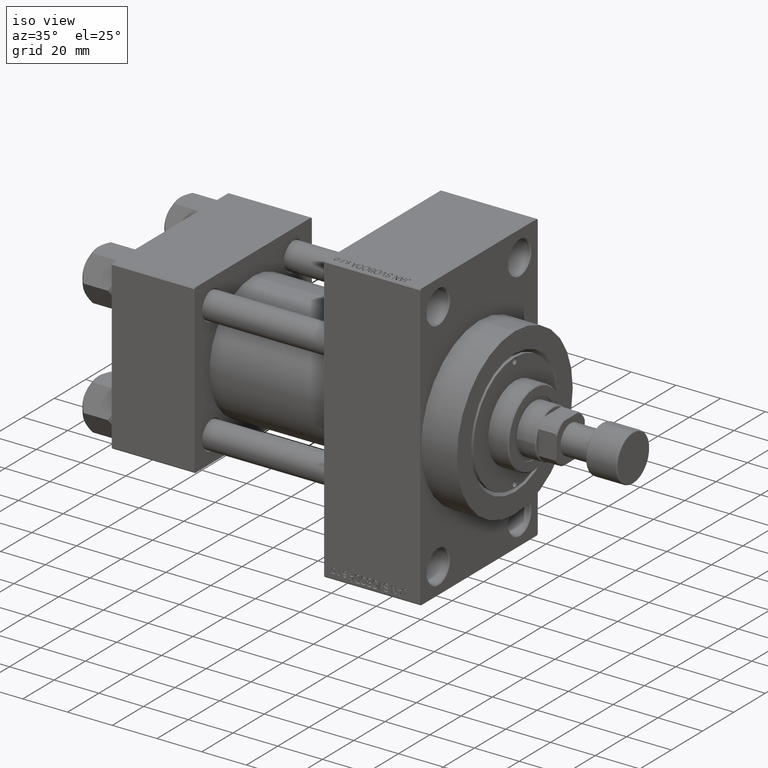
[diagram: clean part render]
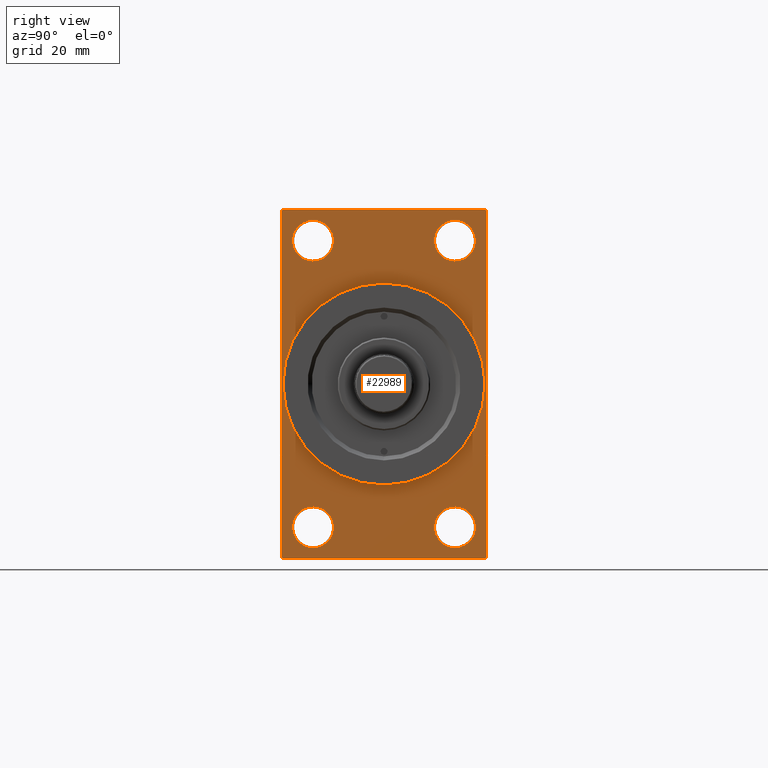
[diagram: tour spotlight — one face highlighted and labeled with its STEP entity id]
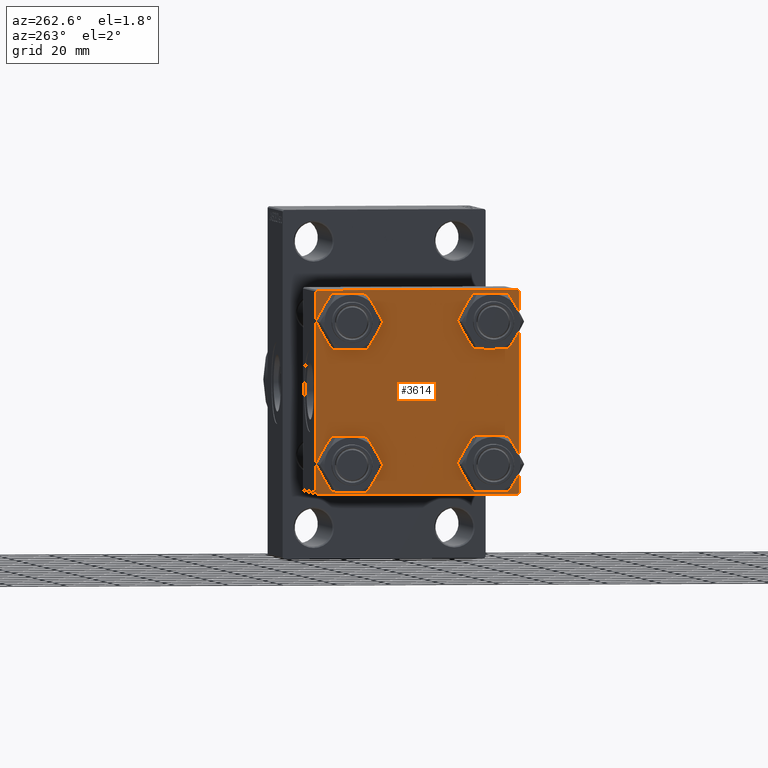
[diagram: tour spotlight — one face highlighted and labeled with its STEP entity id]
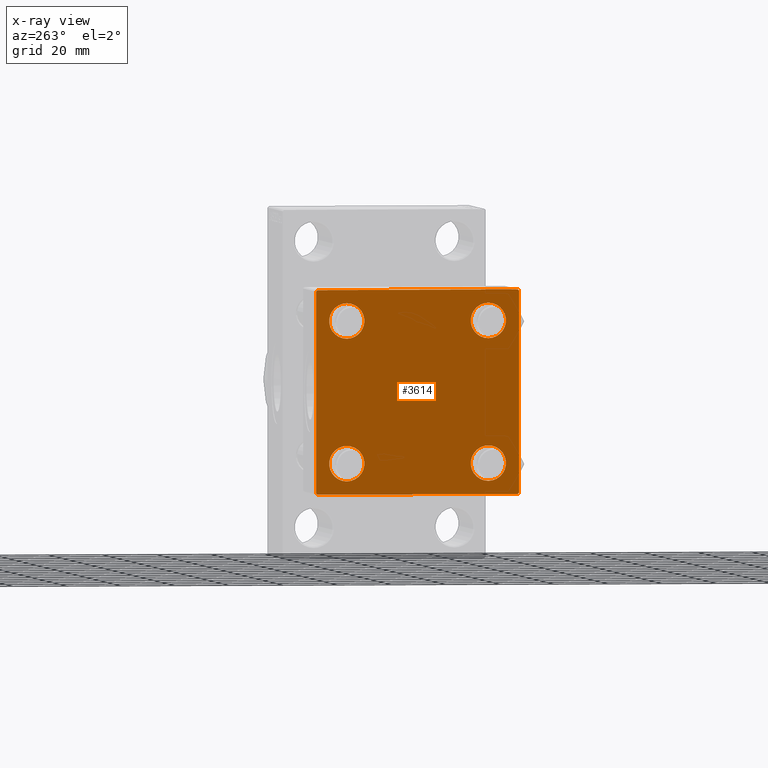
[diagram: x-ray of the same camera — body ghosted, this tour face saturated]
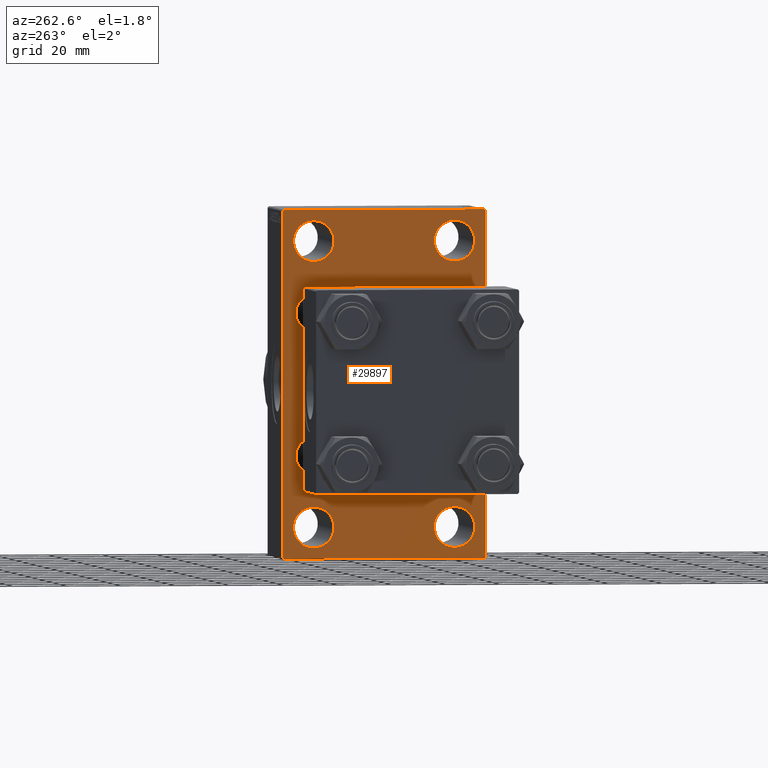
[diagram: tour spotlight — one face highlighted and labeled with its STEP entity id]
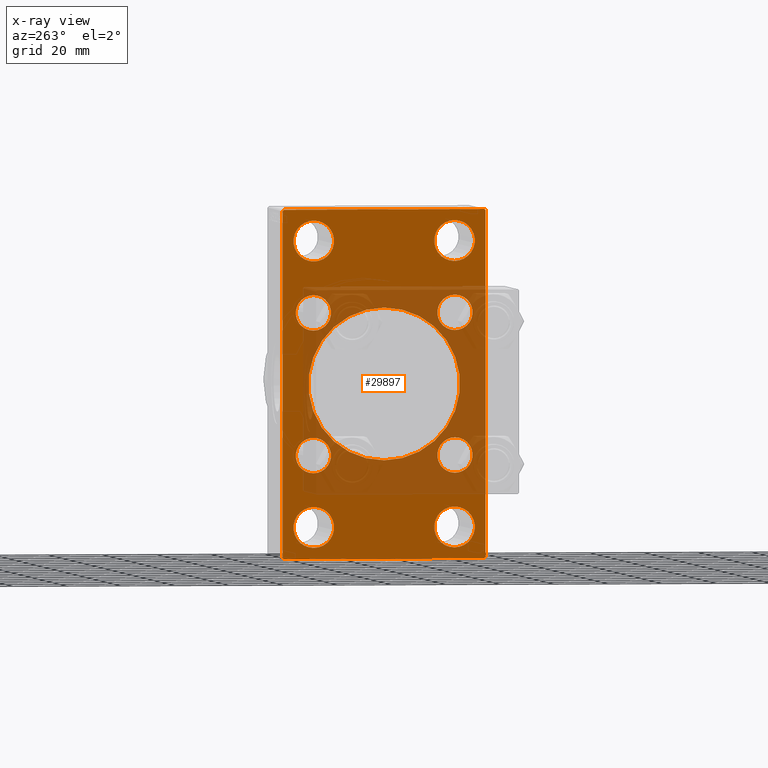
[diagram: x-ray of the same camera — body ghosted, this tour face saturated]
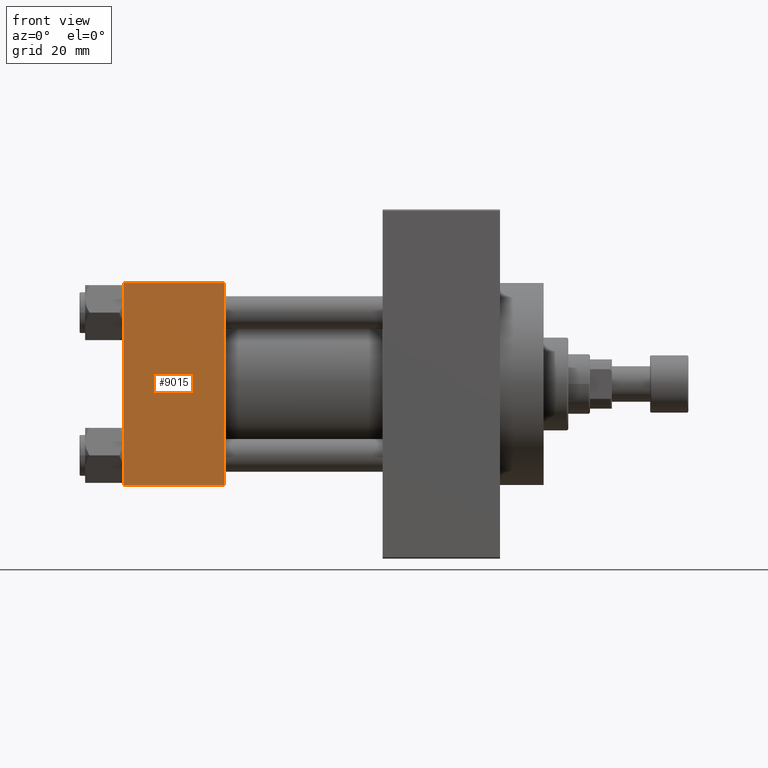
[diagram: tour spotlight — one face highlighted and labeled with its STEP entity id]
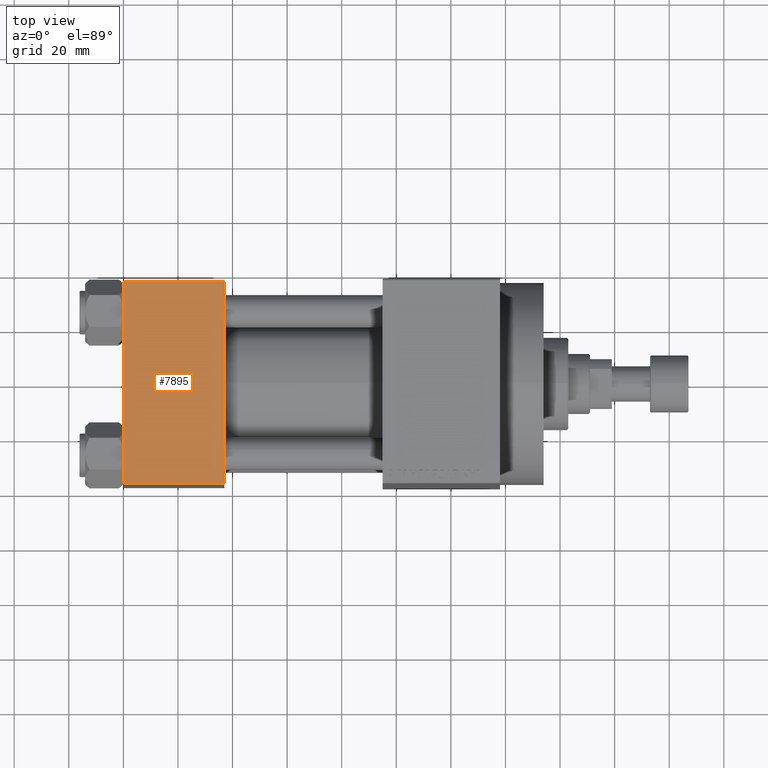
[diagram: tour spotlight — one face highlighted and labeled with its STEP entity id]
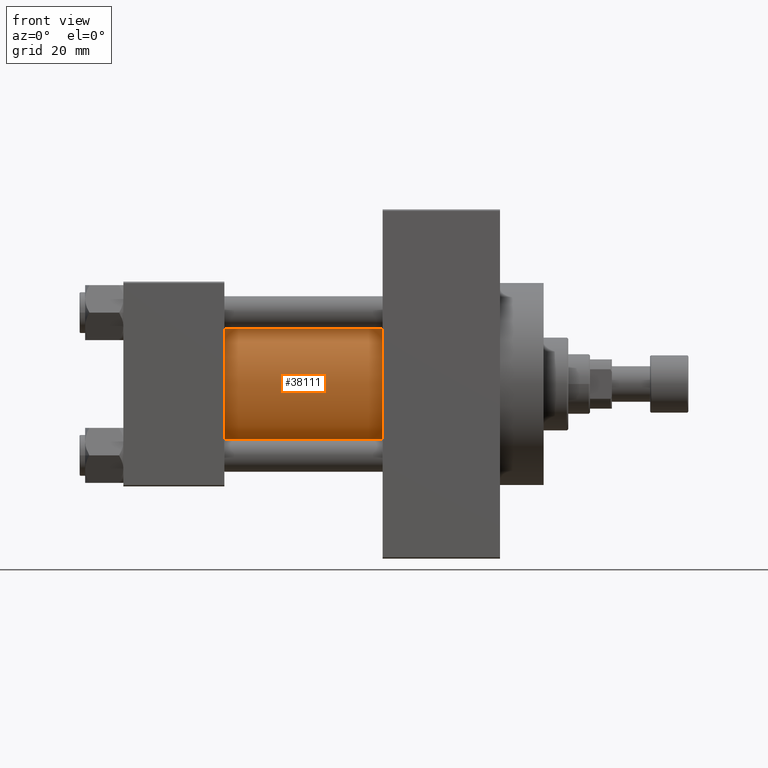
[diagram: tour spotlight — one face highlighted and labeled with its STEP entity id]
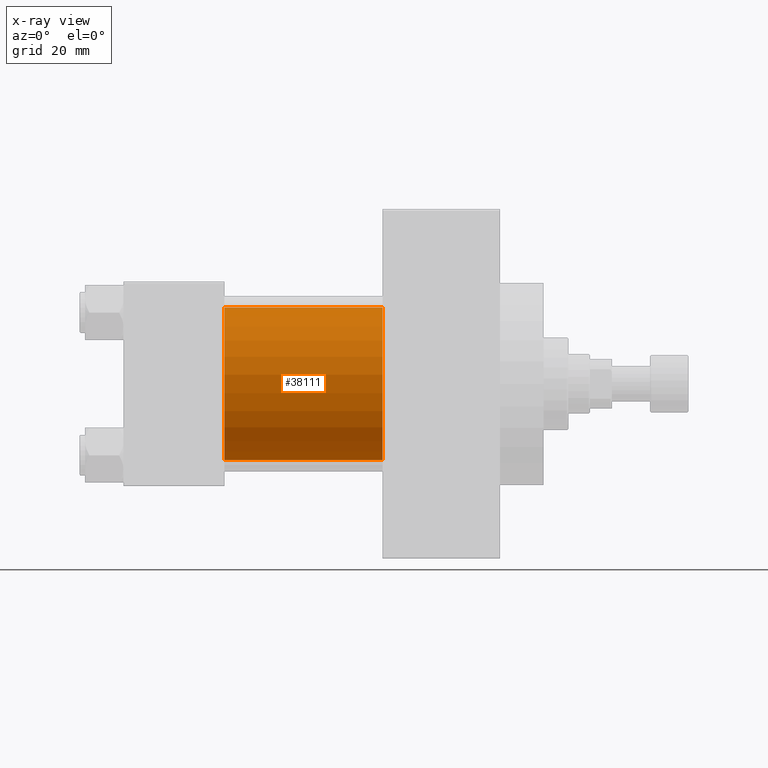
[diagram: x-ray of the same camera — body ghosted, this tour face saturated]
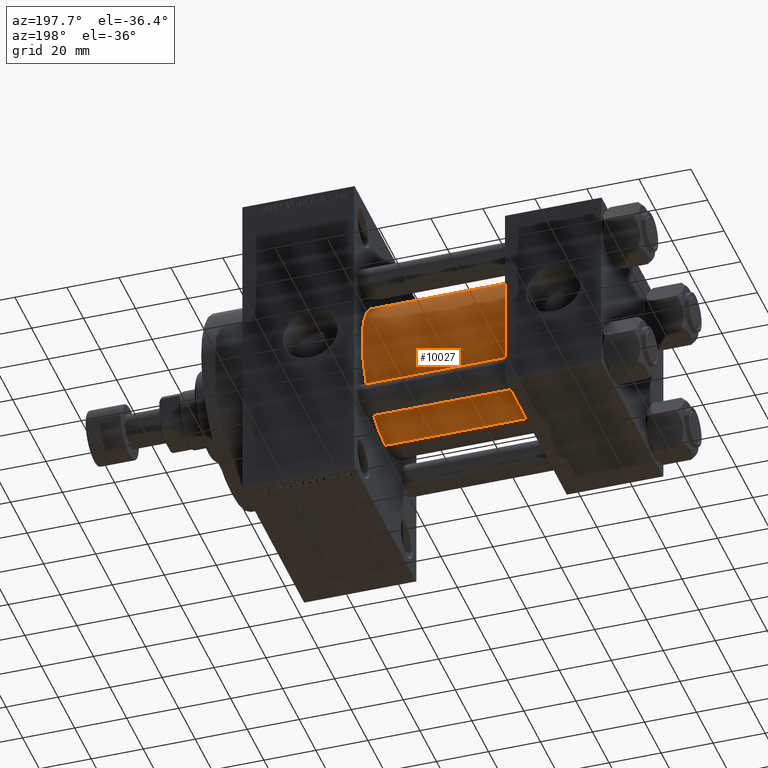
[diagram: tour spotlight — one face highlighted and labeled with its STEP entity id]
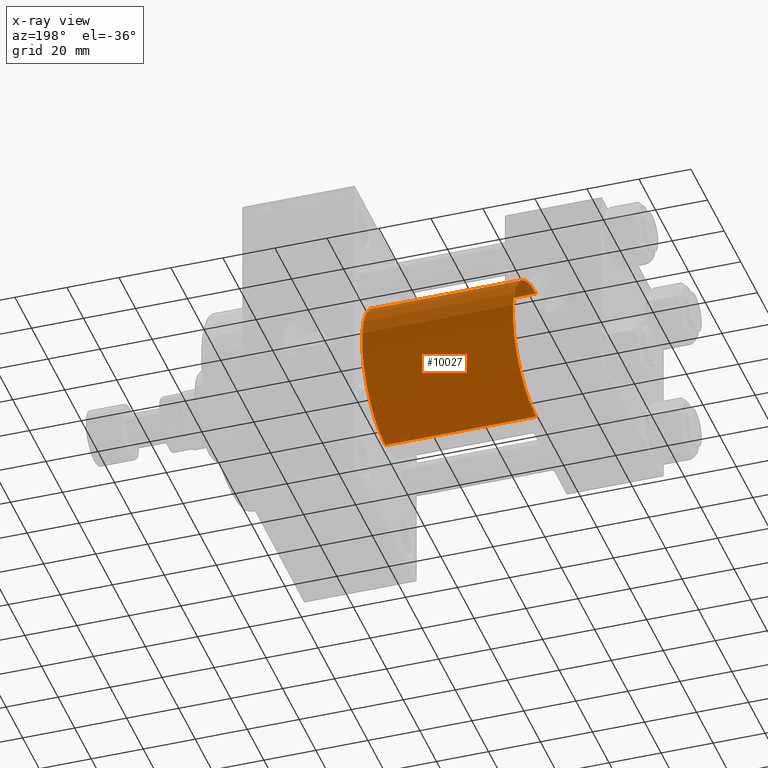
[diagram: x-ray of the same camera — body ghosted, this tour face saturated]
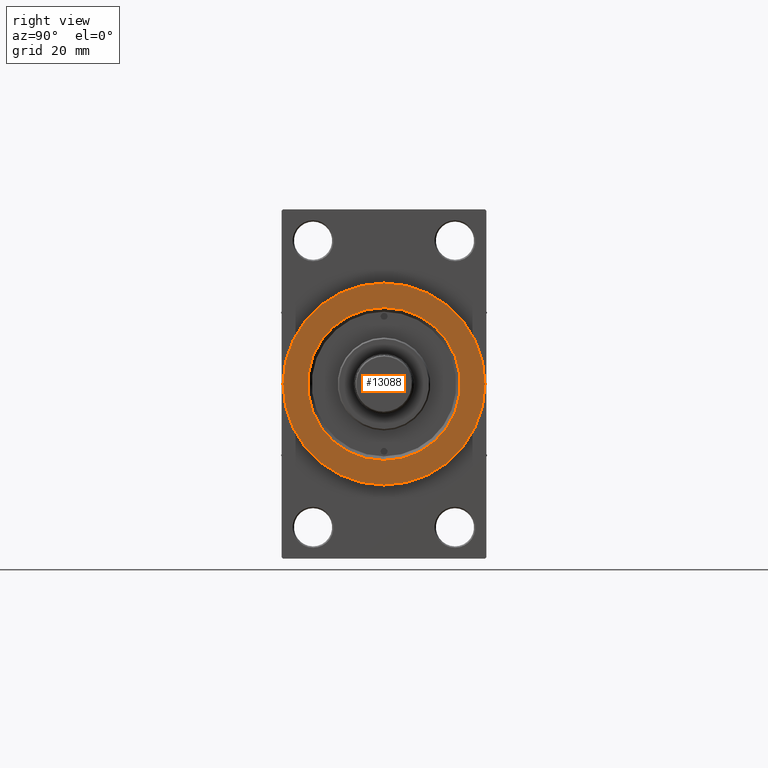
[diagram: tour spotlight — one face highlighted and labeled with its STEP entity id]
A machine part: a face-by-face anatomy tour. The part has 1123 B-rep faces; the first image is the clean iso view, then the 8 largest visible faces are spotlighted one at a time (largest first), each with its STEP entity span.

Face 1 — right view, entity #22989. In plain terms, the highlighted planar face has unit normal (-1, 0, 0).
Definition (entity closure, byte-faithful):
#140 = EDGE_CURVE ( 'NONE', #27331, #17004, #9441, .T. ) ;
#309 = CIRCLE ( 'NONE', #3435, 37.00000000000000000 ) ;
#503 = EDGE_CURVE ( 'NONE', #43094, #6210, #2519, .T. ) ;
#805 = DIRECTION ( 'NONE',  ( -0.000000000000000000, 0.000000000000000000, 1.000000000000000000 ) ) ;
#1234 = VERTEX_POINT ( 'NONE', #43765 ) ;
#1317 = EDGE_CURVE ( 'NONE', #18499, #11020, #21744, .T. ) ;
#1491 = CARTESIAN_POINT ( 'NONE',  ( 138.0000000000000000, 26.00000000000000000, 52.49999999999999289 ) ) ;
#1493 = DIRECTION ( 'NONE',  ( 0.000000000000000000, 0.000000000000000000, 1.000000000000000000 ) ) ;
#1699 = LINE ( 'NONE', #31903, #16755 ) ;
#1723 = DIRECTION ( 'NONE',  ( 0.000000000000000000, 0.000000000000000000, 1.000000000000000000 ) ) ;
#1734 = DIRECTION ( 'NONE',  ( -1.000000000000000000, 0.000000000000000000, -0.000000000000000000 ) ) ;
#2278 = DIRECTION ( 'NONE',  ( -0.000000000000000000, 0.7071067811865573427, 0.7071067811865378028 ) ) ;
#2519 = CIRCLE ( 'NONE', #4056, 7.500000000000007105 ) ;
#3144 = VERTEX_POINT ( 'NONE', #35645 ) ;
#3266 = AXIS2_PLACEMENT_3D ( 'NONE', #35093, #19622, #1493 ) ;
#3435 = AXIS2_PLACEMENT_3D ( 'NONE', #40004, #28637, #9795 ) ;
#3573 = CIRCLE ( 'NONE', #15941, 7.500000000000007105 ) ;
#4056 = AXIS2_PLACEMENT_3D ( 'NONE', #19320, #30698, #45671 ) ;
#4097 = ORIENTED_EDGE ( 'NONE', *, *, #46936, .T. ) ;
#4217 = CARTESIAN_POINT ( 'NONE',  ( 138.0000000000000000, -36.99999999999993605, -64.00000000000001421 ) ) ;
#4324 = CARTESIAN_POINT ( 'NONE',  ( 138.0000000000000000, 37.49999999999999289, -63.50000000000001421 ) ) ;
#5264 = CARTESIAN_POINT ( 'NONE',  ( 138.0000000000000000, 26.00000000000000000, -44.99999999999998579 ) ) ;
#5419 = DIRECTION ( 'NONE',  ( 0.000000000000000000, -5.421010862427522170E-17, -1.000000000000000000 ) ) ;
#5623 = ORIENTED_EDGE ( 'NONE', *, *, #13702, .T. ) ;
#5685 = DIRECTION ( 'NONE',  ( -1.000000000000000000, 0.000000000000000000, -0.000000000000000000 ) ) ;
#5703 = AXIS2_PLACEMENT_3D ( 'NONE', #1491, #42578, #1723 ) ;
#5715 = LINE ( 'NONE', #12469, #13497 ) ;
#5953 = DIRECTION ( 'NONE',  ( -0.000000000000000000, -0.7071067811865524577, -0.7071067811865426878 ) ) ;
#6210 = VERTEX_POINT ( 'NONE', #16038 ) ;
#6602 = CARTESIAN_POINT ( 'NONE',  ( 138.0000000000000000, 37.49999999999999289, -63.50000000000001421 ) ) ;
#7944 = VECTOR ( 'NONE', #23117, 1000.000000000000000 ) ;
#8047 = FACE_OUTER_BOUND ( 'NONE', #8683, .T. ) ;
#8563 = CARTESIAN_POINT ( 'NONE',  ( 138.0000000000000000, -25.99999999999999645, 60.00000000000000711 ) ) ;
#8683 = EDGE_LOOP ( 'NONE', ( #33060, #44427, #47604, #30174, #35468, #18855, #15357, #4097 ) ) ;
#9118 = CIRCLE ( 'NONE', #9865, 7.500000000000007105 ) ;
#9441 = CIRCLE ( 'NONE', #3266, 7.500000000000007105 ) ;
#9694 = DIRECTION ( 'NONE',  ( 0.000000000000000000, 0.000000000000000000, 1.000000000000000000 ) ) ;
#9756 = CARTESIAN_POINT ( 'NONE',  ( 138.0000000000000000, 36.99999999999997158, 63.99999999999998579 ) ) ;
#9795 = DIRECTION ( 'NONE',  ( 0.000000000000000000, 0.000000000000000000, -1.000000000000000000 ) ) ;
#9865 = AXIS2_PLACEMENT_3D ( 'NONE', #28427, #42713, #27726 ) ;
#10068 = VECTOR ( 'NONE', #30239, 1000.000000000000000 ) ;
#10214 = VERTEX_POINT ( 'NONE', #4324 ) ;
#10292 = VECTOR ( 'NONE', #5419, 1000.000000000000000 ) ;
#11020 = VERTEX_POINT ( 'NONE', #40294 ) ;
#11372 = LINE ( 'NONE', #18880, #10068 ) ;
#11782 = VECTOR ( 'NONE', #36511, 1000.000000000000000 ) ;
#11895 = DIRECTION ( 'NONE',  ( -1.000000000000000000, 0.000000000000000000, -0.000000000000000000 ) ) ;
#12469 = CARTESIAN_POINT ( 'NONE',  ( 138.0000000000000000, -37.49999999999999289, 63.49999999999994316 ) ) ;
#12656 = CARTESIAN_POINT ( 'NONE',  ( 138.0000000000000000, 37.50000000000000000, 63.99999999999998579 ) ) ;
#13346 = CIRCLE ( 'NONE', #45774, 7.500000000000007105 ) ;
#13497 = VECTOR ( 'NONE', #5953, 1000.000000000000000 ) ;
#13520 = DIRECTION ( 'NONE',  ( 0.000000000000000000, -1.000000000000000000, -1.850371707708594563E-16 ) ) ;
#13635 = EDGE_LOOP ( 'NONE', ( #5623, #14628 ) ) ;
#13702 = EDGE_CURVE ( 'NONE', #38837, #33603, #3573, .T. ) ;
#14038 = ORIENTED_EDGE ( 'NONE', *, *, #29446, .T. ) ;
#14493 = ORIENTED_EDGE ( 'NONE', *, *, #503, .T. ) ;
#14628 = ORIENTED_EDGE ( 'NONE', *, *, #36048, .T. ) ;
#14684 = DIRECTION ( 'NONE',  ( 1.000000000000000000, 0.000000000000000000, 0.000000000000000000 ) ) ;
#15357 = ORIENTED_EDGE ( 'NONE', *, *, #36499, .T. ) ;
#15629 = AXIS2_PLACEMENT_3D ( 'NONE', #45510, #11895, #37546 ) ;
#15678 = ORIENTED_EDGE ( 'NONE', *, *, #43952, .F. ) ;
#15918 = ORIENTED_EDGE ( 'NONE', *, *, #20721, .T. ) ;
#15941 = AXIS2_PLACEMENT_3D ( 'NONE', #34710, #5685, #16561 ) ;
#16038 = CARTESIAN_POINT ( 'NONE',  ( 138.0000000000000000, 26.00000000000000000, -60.00000000000000000 ) ) ;
#16237 = EDGE_CURVE ( 'NONE', #3144, #41409, #19795, .T. ) ;
#16561 = DIRECTION ( 'NONE',  ( 0.000000000000000000, 0.000000000000000000, 1.000000000000000000 ) ) ;
#16755 = VECTOR ( 'NONE', #13520, 1000.000000000000000 ) ;
#17004 = VERTEX_POINT ( 'NONE', #30209 ) ;
#18287 = CARTESIAN_POINT ( 'NONE',  ( 138.0000000000000000, 4.531193156845206793E-15, -37.00000000000000000 ) ) ;
#18499 = VERTEX_POINT ( 'NONE', #44858 ) ;
#18855 = ORIENTED_EDGE ( 'NONE', *, *, #1317, .T. ) ;
#18880 = CARTESIAN_POINT ( 'NONE',  ( 138.0000000000000000, -37.49999999999999289, 63.99999999999997158 ) ) ;
#18957 = EDGE_CURVE ( 'NONE', #27721, #41409, #1699, .T. ) ;
#19320 = CARTESIAN_POINT ( 'NONE',  ( 138.0000000000000000, 26.00000000000000000, -52.49999999999999289 ) ) ;
#19622 = DIRECTION ( 'NONE',  ( -1.000000000000000000, 0.000000000000000000, -0.000000000000000000 ) ) ;
#19795 = LINE ( 'NONE', #31406, #32220 ) ;
#20721 = EDGE_CURVE ( 'NONE', #26097, #1234, #9118, .T. ) ;
#20871 = VERTEX_POINT ( 'NONE', #41947 ) ;
#21744 = LINE ( 'NONE', #9756, #11782 ) ;
#21892 = CIRCLE ( 'NONE', #5703, 7.500000000000007105 ) ;
#21947 = CARTESIAN_POINT ( 'NONE',  ( 138.0000000000000000, 0.000000000000000000, 0.000000000000000000 ) ) ;
#22022 = VERTEX_POINT ( 'NONE', #39745 ) ;
#22069 = CARTESIAN_POINT ( 'NONE',  ( 138.0000000000000000, 26.00000000000000000, 60.00000000000000000 ) ) ;
#22367 = CARTESIAN_POINT ( 'NONE',  ( 138.0000000000000000, -37.49999999999999289, 63.49999999999994316 ) ) ;
#22802 = PLANE ( 'NONE',  #40825 ) ;
#22989 = ADVANCED_FACE ( 'NONE', ( #33691, #25705, #30050, #41185, #30303, #8047 ), #22802, .F. ) ;
#23050 = DIRECTION ( 'NONE',  ( -1.000000000000000000, 0.000000000000000000, -0.000000000000000000 ) ) ;
#23117 = DIRECTION ( 'NONE',  ( 0.000000000000000000, -1.000000000000000000, -1.850371707708594563E-16 ) ) ;
#23952 = CIRCLE ( 'NONE', #40927, 7.500000000000007105 ) ;
#24387 = EDGE_LOOP ( 'NONE', ( #14038, #14493 ) ) ;
#25705 = FACE_BOUND ( 'NONE', #41819, .T. ) ;
#26097 = VERTEX_POINT ( 'NONE', #22069 ) ;
#26310 = DIRECTION ( 'NONE',  ( -1.000000000000000000, 0.000000000000000000, -0.000000000000000000 ) ) ;
#26504 = LINE ( 'NONE', #37880, #7944 ) ;
#27331 = VERTEX_POINT ( 'NONE', #41380 ) ;
#27345 = EDGE_CURVE ( 'NONE', #44420, #3144, #11372, .T. ) ;
#27721 = VERTEX_POINT ( 'NONE', #31523 ) ;
#27726 = DIRECTION ( 'NONE',  ( 0.000000000000000000, 0.000000000000000000, 1.000000000000000000 ) ) ;
#28427 = CARTESIAN_POINT ( 'NONE',  ( 138.0000000000000000, 26.00000000000000000, 52.49999999999999289 ) ) ;
#28637 = DIRECTION ( 'NONE',  ( 1.000000000000000000, 0.000000000000000000, 0.000000000000000000 ) ) ;
#29437 = DIRECTION ( 'NONE',  ( 0.000000000000000000, 0.000000000000000000, -1.000000000000000000 ) ) ;
#29446 = EDGE_CURVE ( 'NONE', #6210, #43094, #23952, .T. ) ;
#29573 = CIRCLE ( 'NONE', #46613, 37.00000000000000000 ) ;
#30050 = FACE_BOUND ( 'NONE', #24387, .T. ) ;
#30174 = ORIENTED_EDGE ( 'NONE', *, *, #34536, .T. ) ;
#30209 = CARTESIAN_POINT ( 'NONE',  ( 138.0000000000000000, -25.99999999999999645, -60.00000000000000000 ) ) ;
#30239 = DIRECTION ( 'NONE',  ( 0.000000000000000000, 0.000000000000000000, -1.000000000000000000 ) ) ;
#30303 = FACE_BOUND ( 'NONE', #36154, .T. ) ;
#30698 = DIRECTION ( 'NONE',  ( -1.000000000000000000, 0.000000000000000000, -0.000000000000000000 ) ) ;
#30918 = DIRECTION ( 'NONE',  ( 0.000000000000000000, 0.000000000000000000, 1.000000000000000000 ) ) ;
#31406 = CARTESIAN_POINT ( 'NONE',  ( 138.0000000000000000, -36.99999999999993605, -64.00000000000001421 ) ) ;
#31523 = CARTESIAN_POINT ( 'NONE',  ( 138.0000000000000000, 36.99999999999999289, -64.00000000000000000 ) ) ;
#31531 = ORIENTED_EDGE ( 'NONE', *, *, #34732, .T. ) ;
#31903 = CARTESIAN_POINT ( 'NONE',  ( 138.0000000000000000, 37.49999999999999289, -64.00000000000000000 ) ) ;
#32220 = VECTOR ( 'NONE', #38178, 999.9999999999998863 ) ;
#33060 = ORIENTED_EDGE ( 'NONE', *, *, #27345, .T. ) ;
#33603 = VERTEX_POINT ( 'NONE', #8563 ) ;
#33691 = FACE_BOUND ( 'NONE', #13635, .T. ) ;
#33939 = CARTESIAN_POINT ( 'NONE',  ( 138.0000000000000000, 0.000000000000000000, 0.000000000000000000 ) ) ;
#34536 = EDGE_CURVE ( 'NONE', #27721, #10214, #46750, .T. ) ;
#34710 = CARTESIAN_POINT ( 'NONE',  ( 138.0000000000000000, -25.99999999999999645, 52.50000000000000000 ) ) ;
#34732 = EDGE_CURVE ( 'NONE', #17004, #27331, #43402, .T. ) ;
#34836 = CARTESIAN_POINT ( 'NONE',  ( 138.0000000000000000, -25.99999999999999645, 44.99999999999999289 ) ) ;
#34935 = VECTOR ( 'NONE', #2278, 1000.000000000000000 ) ;
#35093 = CARTESIAN_POINT ( 'NONE',  ( 138.0000000000000000, -25.99999999999999645, -52.49999999999999289 ) ) ;
#35468 = ORIENTED_EDGE ( 'NONE', *, *, #41547, .F. ) ;
#35645 = CARTESIAN_POINT ( 'NONE',  ( 138.0000000000000000, -37.49999999999999289, -63.49999999999997158 ) ) ;
#36048 = EDGE_CURVE ( 'NONE', #33603, #38837, #13346, .T. ) ;
#36154 = EDGE_LOOP ( 'NONE', ( #43938, #15678 ) ) ;
#36499 = EDGE_CURVE ( 'NONE', #11020, #22022, #26504, .T. ) ;
#36511 = DIRECTION ( 'NONE',  ( 0.000000000000000000, -0.7071067811865672237, 0.7071067811865279218 ) ) ;
#37546 = DIRECTION ( 'NONE',  ( 0.000000000000000000, 0.000000000000000000, 1.000000000000000000 ) ) ;
#37880 = CARTESIAN_POINT ( 'NONE',  ( 138.0000000000000000, 37.50000000000000000, 63.99999999999998579 ) ) ;
#37999 = EDGE_CURVE ( 'NONE', #1234, #26097, #21892, .T. ) ;
#38178 = DIRECTION ( 'NONE',  ( 0.000000000000000000, 0.7071067811865574537, -0.7071067811865376918 ) ) ;
#38254 = ORIENTED_EDGE ( 'NONE', *, *, #140, .T. ) ;
#38837 = VERTEX_POINT ( 'NONE', #34836 ) ;
#38926 = ORIENTED_EDGE ( 'NONE', *, *, #37999, .T. ) ;
#39745 = CARTESIAN_POINT ( 'NONE',  ( 138.0000000000000000, -36.99999999999995737, 63.99999999999997158 ) ) ;
#40004 = CARTESIAN_POINT ( 'NONE',  ( 138.0000000000000000, 0.000000000000000000, 0.000000000000000000 ) ) ;
#40294 = CARTESIAN_POINT ( 'NONE',  ( 138.0000000000000000, 36.99999999999997158, 63.99999999999998579 ) ) ;
#40825 = AXIS2_PLACEMENT_3D ( 'NONE', #33939, #23050, #805 ) ;
#40927 = AXIS2_PLACEMENT_3D ( 'NONE', #46452, #1734, #9694 ) ;
#41062 = CARTESIAN_POINT ( 'NONE',  ( 138.0000000000000000, -25.99999999999999645, 52.50000000000000000 ) ) ;
#41185 = FACE_BOUND ( 'NONE', #45140, .T. ) ;
#41380 = CARTESIAN_POINT ( 'NONE',  ( 138.0000000000000000, -25.99999999999999645, -44.99999999999998579 ) ) ;
#41409 = VERTEX_POINT ( 'NONE', #4217 ) ;
#41547 = EDGE_CURVE ( 'NONE', #18499, #10214, #45797, .T. ) ;
#41819 = EDGE_LOOP ( 'NONE', ( #31531, #38254 ) ) ;
#41947 = CARTESIAN_POINT ( 'NONE',  ( 138.0000000000000000, 0.000000000000000000, 37.00000000000000000 ) ) ;
#42578 = DIRECTION ( 'NONE',  ( -1.000000000000000000, 0.000000000000000000, -0.000000000000000000 ) ) ;
#42713 = DIRECTION ( 'NONE',  ( -1.000000000000000000, 0.000000000000000000, -0.000000000000000000 ) ) ;
#43094 = VERTEX_POINT ( 'NONE', #5264 ) ;
#43402 = CIRCLE ( 'NONE', #15629, 7.500000000000007105 ) ;
#43765 = CARTESIAN_POINT ( 'NONE',  ( 138.0000000000000000, 26.00000000000000000, 44.99999999999998579 ) ) ;
#43938 = ORIENTED_EDGE ( 'NONE', *, *, #46066, .F. ) ;
#43952 = EDGE_CURVE ( 'NONE', #45048, #20871, #29573, .T. ) ;
#44420 = VERTEX_POINT ( 'NONE', #22367 ) ;
#44427 = ORIENTED_EDGE ( 'NONE', *, *, #16237, .T. ) ;
#44858 = CARTESIAN_POINT ( 'NONE',  ( 138.0000000000000000, 37.50000000000000000, 63.49999999999998579 ) ) ;
#45048 = VERTEX_POINT ( 'NONE', #18287 ) ;
#45140 = EDGE_LOOP ( 'NONE', ( #38926, #15918 ) ) ;
#45510 = CARTESIAN_POINT ( 'NONE',  ( 138.0000000000000000, -25.99999999999999645, -52.49999999999999289 ) ) ;
#45671 = DIRECTION ( 'NONE',  ( 0.000000000000000000, 0.000000000000000000, 1.000000000000000000 ) ) ;
#45774 = AXIS2_PLACEMENT_3D ( 'NONE', #41062, #26310, #30918 ) ;
#45797 = LINE ( 'NONE', #12656, #10292 ) ;
#46066 = EDGE_CURVE ( 'NONE', #20871, #45048, #309, .T. ) ;
#46452 = CARTESIAN_POINT ( 'NONE',  ( 138.0000000000000000, 26.00000000000000000, -52.49999999999999289 ) ) ;
#46613 = AXIS2_PLACEMENT_3D ( 'NONE', #21947, #14684, #29437 ) ;
#46750 = LINE ( 'NONE', #6602, #34935 ) ;
#46936 = EDGE_CURVE ( 'NONE', #22022, #44420, #5715, .T. ) ;
#47604 = ORIENTED_EDGE ( 'NONE', *, *, #18957, .F. ) ;

Face 2 — auxiliary view, entity #3614. An x-ray twin of the same camera follows (body ghosted, this face saturated) — the face is partly hidden behind the body. In plain terms, the highlighted planar face has unit normal (-1, 0, 0).
Definition (entity closure, byte-faithful):
#118 = VECTOR ( 'NONE', #46279, 1000.000000000000114 ) ;
#701 = CARTESIAN_POINT ( 'NONE',  ( 0.000000000000000000, 37.49999999999999289, 37.50000000000000000 ) ) ;
#830 = DIRECTION ( 'NONE',  ( 1.000000000000000000, -0.000000000000000000, 0.000000000000000000 ) ) ;
#1155 = VERTEX_POINT ( 'NONE', #5192 ) ;
#1244 = VERTEX_POINT ( 'NONE', #23794 ) ;
#1256 = LINE ( 'NONE', #24194, #47377 ) ;
#1795 = CARTESIAN_POINT ( 'NONE',  ( 0.000000000000000000, 37.24999999999998579, -37.24999999999998579 ) ) ;
#2306 = CARTESIAN_POINT ( 'NONE',  ( 0.000000000000000000, 26.14999999999999858, -32.65000000000001990 ) ) ;
#2480 = AXIS2_PLACEMENT_3D ( 'NONE', #7714, #41359, #23211 ) ;
#2867 = ORIENTED_EDGE ( 'NONE', *, *, #32158, .T. ) ;
#3314 = DIRECTION ( 'NONE',  ( 1.000000000000000000, -0.000000000000000000, 0.000000000000000000 ) ) ;
#3614 = ADVANCED_FACE ( 'NONE', ( #3875, #45460, #15717, #40860, #34349 ), #8459, .T. ) ;
#3875 = FACE_BOUND ( 'NONE', #5547, .T. ) ;
#4290 = EDGE_CURVE ( 'NONE', #16631, #7595, #19522, .T. ) ;
#4759 = ORIENTED_EDGE ( 'NONE', *, *, #42813, .T. ) ;
#4866 = AXIS2_PLACEMENT_3D ( 'NONE', #19894, #24232, #24698 ) ;
#4926 = VECTOR ( 'NONE', #46650, 1000.000000000000000 ) ;
#5192 = CARTESIAN_POINT ( 'NONE',  ( 0.000000000000000000, -26.14999999999999147, 19.64999999999999147 ) ) ;
#5547 = EDGE_LOOP ( 'NONE', ( #4759, #26183 ) ) ;
#5690 = CARTESIAN_POINT ( 'NONE',  ( 0.000000000000000000, 36.99999999999997868, -37.50000000000000000 ) ) ;
#5814 = EDGE_CURVE ( 'NONE', #18606, #37407, #33992, .T. ) ;
#6232 = CARTESIAN_POINT ( 'NONE',  ( 0.000000000000000000, 37.49999999999999289, -37.50000000000000000 ) ) ;
#6791 = CARTESIAN_POINT ( 'NONE',  ( 0.000000000000000000, 26.14999999999999858, 26.15000000000000213 ) ) ;
#7017 = AXIS2_PLACEMENT_3D ( 'NONE', #6791, #42609, #43088 ) ;
#7084 = EDGE_LOOP ( 'NONE', ( #21825, #44312 ) ) ;
#7190 = EDGE_CURVE ( 'NONE', #43340, #41656, #36573, .T. ) ;
#7508 = CARTESIAN_POINT ( 'NONE',  ( 0.000000000000000000, 26.14999999999999858, 26.15000000000000213 ) ) ;
#7595 = VERTEX_POINT ( 'NONE', #30181 ) ;
#7714 = CARTESIAN_POINT ( 'NONE',  ( 0.000000000000000000, 0.000000000000000000, 0.000000000000000000 ) ) ;
#7797 = VERTEX_POINT ( 'NONE', #17813 ) ;
#7938 = LINE ( 'NONE', #701, #17968 ) ;
#8076 = ORIENTED_EDGE ( 'NONE', *, *, #43804, .T. ) ;
#8300 = VERTEX_POINT ( 'NONE', #18946 ) ;
#8459 = PLANE ( 'NONE',  #2480 ) ;
#8588 = DIRECTION ( 'NONE',  ( 0.000000000000000000, -1.000000000000000000, -9.251858538542971581E-17 ) ) ;
#9648 = CARTESIAN_POINT ( 'NONE',  ( 0.000000000000000000, -26.14999999999999147, 26.15000000000000924 ) ) ;
#9714 = CARTESIAN_POINT ( 'NONE',  ( 0.000000000000000000, 26.14999999999999858, 32.65000000000002700 ) ) ;
#10753 = LINE ( 'NONE', #30828, #37379 ) ;
#10794 = DIRECTION ( 'NONE',  ( 0.000000000000000000, 0.000000000000000000, 1.000000000000000000 ) ) ;
#11039 = EDGE_CURVE ( 'NONE', #14545, #23143, #36704, .T. ) ;
#11165 = CARTESIAN_POINT ( 'NONE',  ( 0.000000000000000000, -26.14999999999999147, -19.64999999999999503 ) ) ;
#11976 = CARTESIAN_POINT ( 'NONE',  ( 0.000000000000000000, 37.49999999999999289, 37.50000000000000000 ) ) ;
#12171 = EDGE_CURVE ( 'NONE', #1244, #37407, #19224, .T. ) ;
#13126 = CARTESIAN_POINT ( 'NONE',  ( 0.000000000000000000, -26.14999999999999147, 26.15000000000000924 ) ) ;
#14442 = ORIENTED_EDGE ( 'NONE', *, *, #33715, .T. ) ;
#14545 = VERTEX_POINT ( 'NONE', #2306 ) ;
#14880 = CARTESIAN_POINT ( 'NONE',  ( 0.000000000000000000, -26.14999999999999147, -26.15000000000000924 ) ) ;
#14965 = EDGE_LOOP ( 'NONE', ( #34083, #40133 ) ) ;
#15440 = DIRECTION ( 'NONE',  ( 0.000000000000000000, 0.000000000000000000, -1.000000000000000000 ) ) ;
#15717 = FACE_BOUND ( 'NONE', #14965, .T. ) ;
#15828 = DIRECTION ( 'NONE',  ( 0.000000000000000000, 0.000000000000000000, 1.000000000000000000 ) ) ;
#16264 = CIRCLE ( 'NONE', #32470, 6.500000000000023093 ) ;
#16631 = VERTEX_POINT ( 'NONE', #11165 ) ;
#16901 = ORIENTED_EDGE ( 'NONE', *, *, #5814, .F. ) ;
#17813 = CARTESIAN_POINT ( 'NONE',  ( 0.000000000000000000, -37.00000000000002132, -37.50000000000000711 ) ) ;
#17968 = VECTOR ( 'NONE', #15440, 1000.000000000000000 ) ;
#18183 = DIRECTION ( 'NONE',  ( 0.000000000000000000, 0.000000000000000000, 1.000000000000000000 ) ) ;
#18606 = VERTEX_POINT ( 'NONE', #26972 ) ;
#18946 = CARTESIAN_POINT ( 'NONE',  ( 0.000000000000000000, 37.49999999999999289, -36.99999999999998579 ) ) ;
#19224 = LINE ( 'NONE', #34703, #29790 ) ;
#19522 = CIRCLE ( 'NONE', #4866, 6.500000000000015987 ) ;
#19894 = CARTESIAN_POINT ( 'NONE',  ( 0.000000000000000000, -26.14999999999999147, -26.15000000000000924 ) ) ;
#20456 = CARTESIAN_POINT ( 'NONE',  ( 0.000000000000000000, -37.50000000000000000, -37.00000000000003553 ) ) ;
#21825 = ORIENTED_EDGE ( 'NONE', *, *, #4290, .T. ) ;
#21854 = VECTOR ( 'NONE', #8588, 1000.000000000000000 ) ;
#21997 = VERTEX_POINT ( 'NONE', #28151 ) ;
#22263 = DIRECTION ( 'NONE',  ( 1.000000000000000000, -0.000000000000000000, 0.000000000000000000 ) ) ;
#22737 = VERTEX_POINT ( 'NONE', #5690 ) ;
#23143 = VERTEX_POINT ( 'NONE', #34182 ) ;
#23211 = DIRECTION ( 'NONE',  ( -0.000000000000000000, 0.000000000000000000, 1.000000000000000000 ) ) ;
#23497 = AXIS2_PLACEMENT_3D ( 'NONE', #14880, #29640, #40770 ) ;
#23794 = CARTESIAN_POINT ( 'NONE',  ( 0.000000000000000000, -37.50000000000000711, 36.99999999999999289 ) ) ;
#24165 = LINE ( 'NONE', #42788, #4926 ) ;
#24194 = CARTESIAN_POINT ( 'NONE',  ( 0.000000000000000000, 37.24999999999999289, 37.24999999999999289 ) ) ;
#24232 = DIRECTION ( 'NONE',  ( 1.000000000000000000, -0.000000000000000000, 0.000000000000000000 ) ) ;
#24393 = EDGE_CURVE ( 'NONE', #22737, #7797, #43444, .T. ) ;
#24400 = DIRECTION ( 'NONE',  ( 1.000000000000000000, -0.000000000000000000, 0.000000000000000000 ) ) ;
#24511 = LINE ( 'NONE', #1795, #118 ) ;
#24531 = DIRECTION ( 'NONE',  ( -0.000000000000000000, 0.7071067811865474617, 0.7071067811865474617 ) ) ;
#24698 = DIRECTION ( 'NONE',  ( 0.000000000000000000, 0.000000000000000000, 1.000000000000000000 ) ) ;
#25016 = ORIENTED_EDGE ( 'NONE', *, *, #38063, .T. ) ;
#26183 = ORIENTED_EDGE ( 'NONE', *, *, #27770, .T. ) ;
#26718 = DIRECTION ( 'NONE',  ( 0.000000000000000000, 9.251858538542971581E-17, -1.000000000000000000 ) ) ;
#26945 = CARTESIAN_POINT ( 'NONE',  ( 0.000000000000000000, 26.14999999999999858, -26.15000000000000213 ) ) ;
#26972 = CARTESIAN_POINT ( 'NONE',  ( 0.000000000000000000, 36.99999999999999289, 37.50000000000000000 ) ) ;
#27770 = EDGE_CURVE ( 'NONE', #1155, #42639, #16264, .T. ) ;
#27891 = CIRCLE ( 'NONE', #7017, 6.500000000000023093 ) ;
#28151 = CARTESIAN_POINT ( 'NONE',  ( 0.000000000000000000, 37.49999999999999289, 37.00000000000000000 ) ) ;
#28506 = VECTOR ( 'NONE', #31634, 1000.000000000000000 ) ;
#28696 = CIRCLE ( 'NONE', #41840, 6.500000000000015987 ) ;
#28922 = EDGE_LOOP ( 'NONE', ( #33469, #14442, #29651, #8076, #35898, #35704, #16901, #25016 ) ) ;
#29407 = CARTESIAN_POINT ( 'NONE',  ( 0.000000000000000000, 26.14999999999999858, -26.15000000000000213 ) ) ;
#29640 = DIRECTION ( 'NONE',  ( 1.000000000000000000, -0.000000000000000000, 0.000000000000000000 ) ) ;
#29651 = ORIENTED_EDGE ( 'NONE', *, *, #24393, .T. ) ;
#29705 = CARTESIAN_POINT ( 'NONE',  ( 0.000000000000000000, -37.00000000000000711, 37.49999999999999289 ) ) ;
#29790 = VECTOR ( 'NONE', #24531, 1000.000000000000114 ) ;
#30181 = CARTESIAN_POINT ( 'NONE',  ( 0.000000000000000000, -26.14999999999999147, -32.65000000000002700 ) ) ;
#30828 = CARTESIAN_POINT ( 'NONE',  ( 0.000000000000000000, -37.50000000000000711, 37.49999999999999289 ) ) ;
#31310 = AXIS2_PLACEMENT_3D ( 'NONE', #29407, #3314, #10794 ) ;
#31634 = DIRECTION ( 'NONE',  ( 0.000000000000000000, -1.000000000000000000, -9.251858538542972814E-17 ) ) ;
#32108 = AXIS2_PLACEMENT_3D ( 'NONE', #9648, #24400, #39158 ) ;
#32158 = EDGE_CURVE ( 'NONE', #41656, #43340, #27891, .T. ) ;
#32470 = AXIS2_PLACEMENT_3D ( 'NONE', #13126, #40658, #18183 ) ;
#33469 = ORIENTED_EDGE ( 'NONE', *, *, #35670, .T. ) ;
#33647 = EDGE_CURVE ( 'NONE', #23143, #14545, #28696, .T. ) ;
#33715 = EDGE_CURVE ( 'NONE', #8300, #22737, #24511, .T. ) ;
#33992 = LINE ( 'NONE', #11976, #21854 ) ;
#34083 = ORIENTED_EDGE ( 'NONE', *, *, #33647, .T. ) ;
#34175 = VERTEX_POINT ( 'NONE', #20456 ) ;
#34182 = CARTESIAN_POINT ( 'NONE',  ( 0.000000000000000000, 26.14999999999999858, -19.64999999999998792 ) ) ;
#34349 = FACE_OUTER_BOUND ( 'NONE', #28922, .T. ) ;
#34703 = CARTESIAN_POINT ( 'NONE',  ( -0.000000000000000000, -37.25000000000000000, 37.25000000000000000 ) ) ;
#35627 = CARTESIAN_POINT ( 'NONE',  ( 0.000000000000000000, 26.14999999999999858, 19.64999999999998437 ) ) ;
#35670 = EDGE_CURVE ( 'NONE', #21997, #8300, #7938, .T. ) ;
#35704 = ORIENTED_EDGE ( 'NONE', *, *, #12171, .T. ) ;
#35898 = ORIENTED_EDGE ( 'NONE', *, *, #42083, .F. ) ;
#36573 = CIRCLE ( 'NONE', #41204, 6.500000000000023093 ) ;
#36704 = CIRCLE ( 'NONE', #31310, 6.500000000000015987 ) ;
#37379 = VECTOR ( 'NONE', #26718, 1000.000000000000000 ) ;
#37407 = VERTEX_POINT ( 'NONE', #29705 ) ;
#37503 = CIRCLE ( 'NONE', #32108, 6.500000000000023093 ) ;
#37762 = DIRECTION ( 'NONE',  ( 0.000000000000000000, 0.000000000000000000, 1.000000000000000000 ) ) ;
#38063 = EDGE_CURVE ( 'NONE', #18606, #21997, #1256, .T. ) ;
#38958 = DIRECTION ( 'NONE',  ( 0.000000000000000000, 0.7071067811865474617, -0.7071067811865474617 ) ) ;
#39158 = DIRECTION ( 'NONE',  ( 0.000000000000000000, 0.000000000000000000, 1.000000000000000000 ) ) ;
#39398 = EDGE_CURVE ( 'NONE', #7595, #16631, #44335, .T. ) ;
#40133 = ORIENTED_EDGE ( 'NONE', *, *, #11039, .T. ) ;
#40636 = EDGE_LOOP ( 'NONE', ( #41469, #2867 ) ) ;
#40658 = DIRECTION ( 'NONE',  ( 1.000000000000000000, -0.000000000000000000, 0.000000000000000000 ) ) ;
#40770 = DIRECTION ( 'NONE',  ( 0.000000000000000000, 0.000000000000000000, 1.000000000000000000 ) ) ;
#40860 = FACE_BOUND ( 'NONE', #40636, .T. ) ;
#41100 = CARTESIAN_POINT ( 'NONE',  ( 0.000000000000000000, -26.14999999999999147, 32.65000000000003411 ) ) ;
#41204 = AXIS2_PLACEMENT_3D ( 'NONE', #7508, #22263, #37762 ) ;
#41359 = DIRECTION ( 'NONE',  ( -1.000000000000000000, 0.000000000000000000, -0.000000000000000000 ) ) ;
#41469 = ORIENTED_EDGE ( 'NONE', *, *, #7190, .T. ) ;
#41656 = VERTEX_POINT ( 'NONE', #35627 ) ;
#41840 = AXIS2_PLACEMENT_3D ( 'NONE', #26945, #830, #15828 ) ;
#42083 = EDGE_CURVE ( 'NONE', #1244, #34175, #10753, .T. ) ;
#42609 = DIRECTION ( 'NONE',  ( 1.000000000000000000, -0.000000000000000000, 0.000000000000000000 ) ) ;
#42639 = VERTEX_POINT ( 'NONE', #41100 ) ;
#42788 = CARTESIAN_POINT ( 'NONE',  ( 0.000000000000000000, -37.24999999999975842, -37.25000000000027001 ) ) ;
#42813 = EDGE_CURVE ( 'NONE', #42639, #1155, #37503, .T. ) ;
#43088 = DIRECTION ( 'NONE',  ( 0.000000000000000000, 0.000000000000000000, 1.000000000000000000 ) ) ;
#43340 = VERTEX_POINT ( 'NONE', #9714 ) ;
#43444 = LINE ( 'NONE', #6232, #28506 ) ;
#43804 = EDGE_CURVE ( 'NONE', #7797, #34175, #24165, .T. ) ;
#44312 = ORIENTED_EDGE ( 'NONE', *, *, #39398, .T. ) ;
#44335 = CIRCLE ( 'NONE', #23497, 6.500000000000015987 ) ;
#45460 = FACE_BOUND ( 'NONE', #7084, .T. ) ;
#46279 = DIRECTION ( 'NONE',  ( -0.000000000000000000, -0.7071067811865474617, -0.7071067811865474617 ) ) ;
#46650 = DIRECTION ( 'NONE',  ( 0.000000000000000000, -0.7071067811865524577, 0.7071067811865426878 ) ) ;
#47377 = VECTOR ( 'NONE', #38958, 1000.000000000000114 ) ;

Face 3 — auxiliary view, entity #29897. An x-ray twin of the same camera follows (body ghosted, this face saturated) — the face is partly hidden behind the body. In plain terms, the highlighted planar face has unit normal (-1, 0, 0).
Definition (entity closure, byte-faithful):
#304 = DIRECTION ( 'NONE',  ( 0.000000000000000000, 0.000000000000000000, 1.000000000000000000 ) ) ;
#380 = VECTOR ( 'NONE', #14599, 1000.000000000000000 ) ;
#385 = EDGE_CURVE ( 'NONE', #1806, #11969, #32600, .T. ) ;
#496 = VERTEX_POINT ( 'NONE', #4816 ) ;
#763 = LINE ( 'NONE', #9382, #24301 ) ;
#905 = LINE ( 'NONE', #37909, #22997 ) ;
#1496 = VERTEX_POINT ( 'NONE', #8678 ) ;
#1806 = VERTEX_POINT ( 'NONE', #46579 ) ;
#2390 = VERTEX_POINT ( 'NONE', #38982 ) ;
#2449 = VERTEX_POINT ( 'NONE', #29489 ) ;
#2579 = DIRECTION ( 'NONE',  ( 1.000000000000000000, -0.000000000000000000, 0.000000000000000000 ) ) ;
#2655 = AXIS2_PLACEMENT_3D ( 'NONE', #30383, #16111, #12703 ) ;
#2783 = VECTOR ( 'NONE', #31841, 1000.000000000000000 ) ;
#3368 = VERTEX_POINT ( 'NONE', #16731 ) ;
#3380 = CIRCLE ( 'NONE', #38903, 6.500000000000008882 ) ;
#3576 = FACE_BOUND ( 'NONE', #27059, .T. ) ;
#3622 = DIRECTION ( 'NONE',  ( 1.000000000000000000, -0.000000000000000000, 0.000000000000000000 ) ) ;
#3681 = DIRECTION ( 'NONE',  ( 0.000000000000000000, 0.000000000000000000, 1.000000000000000000 ) ) ;
#3776 = ORIENTED_EDGE ( 'NONE', *, *, #8168, .T. ) ;
#3810 = DIRECTION ( 'NONE',  ( -1.000000000000000000, 0.000000000000000000, -0.000000000000000000 ) ) ;
#4164 = EDGE_CURVE ( 'NONE', #36171, #47772, #40322, .T. ) ;
#4309 = DIRECTION ( 'NONE',  ( 0.000000000000000000, 0.000000000000000000, 1.000000000000000000 ) ) ;
#4315 = DIRECTION ( 'NONE',  ( 1.000000000000000000, -0.000000000000000000, 0.000000000000000000 ) ) ;
#4465 = EDGE_CURVE ( 'NONE', #31032, #43718, #34966, .T. ) ;
#4816 = CARTESIAN_POINT ( 'NONE',  ( 95.00000000000000000, -36.99999999999993605, -64.00000000000001421 ) ) ;
#6186 = EDGE_LOOP ( 'NONE', ( #10478, #32123, #19953, #43206, #33276, #11851, #21866, #42943 ) ) ;
#6209 = DIRECTION ( 'NONE',  ( 1.000000000000000000, -0.000000000000000000, 0.000000000000000000 ) ) ;
#6305 = VECTOR ( 'NONE', #36155, 1000.000000000000000 ) ;
#6401 = DIRECTION ( 'NONE',  ( 0.000000000000000000, 0.000000000000000000, -1.000000000000000000 ) ) ;
#6676 = LINE ( 'NONE', #7606, #40695 ) ;
#7144 = AXIS2_PLACEMENT_3D ( 'NONE', #10412, #25171, #39924 ) ;
#7175 = DIRECTION ( 'NONE',  ( 0.000000000000000000, 0.000000000000000000, 1.000000000000000000 ) ) ;
#7329 = VERTEX_POINT ( 'NONE', #46195 ) ;
#7412 = AXIS2_PLACEMENT_3D ( 'NONE', #31143, #4315, #38163 ) ;
#7606 = CARTESIAN_POINT ( 'NONE',  ( 95.00000000000000000, -50.49999999999970868, 50.50000000000040501 ) ) ;
#7848 = DIRECTION ( 'NONE',  ( -0.000000000000000000, 0.7071067811865524577, 0.7071067811865426878 ) ) ;
#8084 = CARTESIAN_POINT ( 'NONE',  ( 95.00000000000000000, -36.99999999999995737, 63.99999999999997158 ) ) ;
#8168 = EDGE_CURVE ( 'NONE', #43718, #31032, #29653, .T. ) ;
#8258 = CARTESIAN_POINT ( 'NONE',  ( 95.00000000000000000, 26.14999999999999858, -26.15000000000000213 ) ) ;
#8656 = CIRCLE ( 'NONE', #41874, 7.499999999999978684 ) ;
#8678 = CARTESIAN_POINT ( 'NONE',  ( 95.00000000000000000, -25.99999999999999645, -45.00000000000001421 ) ) ;
#8740 = CIRCLE ( 'NONE', #17268, 6.500000000000008882 ) ;
#9048 = EDGE_CURVE ( 'NONE', #11969, #1806, #22720, .T. ) ;
#9052 = EDGE_LOOP ( 'NONE', ( #13804, #30921 ) ) ;
#9382 = CARTESIAN_POINT ( 'NONE',  ( 95.00000000000000000, 50.49999999999948841, -50.50000000000088107 ) ) ;
#10031 = AXIS2_PLACEMENT_3D ( 'NONE', #44177, #3810, #43464 ) ;
#10412 = CARTESIAN_POINT ( 'NONE',  ( 95.00000000000000000, -2.602085213965210642E-15, 0.000000000000000000 ) ) ;
#10478 = ORIENTED_EDGE ( 'NONE', *, *, #14945, .T. ) ;
#10504 = CARTESIAN_POINT ( 'NONE',  ( 95.00000000000000000, 50.49999999999894840, 50.50000000000176215 ) ) ;
#11508 = AXIS2_PLACEMENT_3D ( 'NONE', #25559, #40312, #7175 ) ;
#11769 = EDGE_CURVE ( 'NONE', #39830, #19526, #20485, .T. ) ;
#11851 = ORIENTED_EDGE ( 'NONE', *, *, #47228, .T. ) ;
#11969 = VERTEX_POINT ( 'NONE', #46117 ) ;
#12101 = VECTOR ( 'NONE', #27991, 1000.000000000000000 ) ;
#12488 = DIRECTION ( 'NONE',  ( 1.000000000000000000, -0.000000000000000000, 0.000000000000000000 ) ) ;
#12622 = CARTESIAN_POINT ( 'NONE',  ( 95.00000000000000000, 26.14999999999999858, 26.15000000000000213 ) ) ;
#12703 = DIRECTION ( 'NONE',  ( 0.000000000000000000, 0.000000000000000000, 1.000000000000000000 ) ) ;
#12774 = EDGE_LOOP ( 'NONE', ( #30844, #21028 ) ) ;
#12828 = EDGE_CURVE ( 'NONE', #28887, #23585, #35481, .T. ) ;
#12901 = VERTEX_POINT ( 'NONE', #33749 ) ;
#13406 = EDGE_LOOP ( 'NONE', ( #46802, #3776 ) ) ;
#13704 = CARTESIAN_POINT ( 'NONE',  ( 95.00000000000000000, 37.49999999999999289, -64.00000000000000000 ) ) ;
#13729 = FACE_BOUND ( 'NONE', #15332, .T. ) ;
#13804 = ORIENTED_EDGE ( 'NONE', *, *, #35459, .T. ) ;
#13909 = CARTESIAN_POINT ( 'NONE',  ( 95.00000000000000000, -25.99999999999999645, 52.50000000000000000 ) ) ;
#13966 = ORIENTED_EDGE ( 'NONE', *, *, #44095, .T. ) ;
#14012 = EDGE_CURVE ( 'NONE', #2449, #1496, #24432, .T. ) ;
#14115 = DIRECTION ( 'NONE',  ( 1.000000000000000000, 0.000000000000000000, 0.000000000000000000 ) ) ;
#14193 = CIRCLE ( 'NONE', #40473, 7.499999999999978684 ) ;
#14199 = FACE_BOUND ( 'NONE', #23981, .T. ) ;
#14418 = VECTOR ( 'NONE', #23457, 999.9999999999998863 ) ;
#14599 = DIRECTION ( 'NONE',  ( 0.000000000000000000, 0.7071067811865672237, -0.7071067811865279218 ) ) ;
#14604 = EDGE_LOOP ( 'NONE', ( #30853, #34804 ) ) ;
#14808 = AXIS2_PLACEMENT_3D ( 'NONE', #13909, #43661, #39798 ) ;
#14945 = EDGE_CURVE ( 'NONE', #40858, #496, #16628, .T. ) ;
#15332 = EDGE_LOOP ( 'NONE', ( #45574, #37238 ) ) ;
#15498 = EDGE_CURVE ( 'NONE', #29962, #21538, #45350, .T. ) ;
#15772 = CIRCLE ( 'NONE', #2655, 6.500000000000008882 ) ;
#16033 = DIRECTION ( 'NONE',  ( 1.000000000000000000, -0.000000000000000000, 0.000000000000000000 ) ) ;
#16111 = DIRECTION ( 'NONE',  ( 1.000000000000000000, -0.000000000000000000, 0.000000000000000000 ) ) ;
#16165 = CARTESIAN_POINT ( 'NONE',  ( 95.00000000000000000, -25.99999999999999645, -52.49999999999999289 ) ) ;
#16235 = DIRECTION ( 'NONE',  ( 0.000000000000000000, 0.000000000000000000, 1.000000000000000000 ) ) ;
#16280 = DIRECTION ( 'NONE',  ( 1.000000000000000000, -0.000000000000000000, 0.000000000000000000 ) ) ;
#16433 = CARTESIAN_POINT ( 'NONE',  ( 95.00000000000000000, 8.269258236473776482E-16, -28.00000000000000000 ) ) ;
#16628 = LINE ( 'NONE', #13704, #12101 ) ;
#16649 = CARTESIAN_POINT ( 'NONE',  ( 95.00000000000000000, 37.50000000000000000, 63.49999999999998579 ) ) ;
#16731 = CARTESIAN_POINT ( 'NONE',  ( 95.00000000000000000, 26.00000000000000000, -59.99999999999997158 ) ) ;
#16758 = CARTESIAN_POINT ( 'NONE',  ( 95.00000000000000000, -26.14999999999999147, 26.15000000000000924 ) ) ;
#17099 = ORIENTED_EDGE ( 'NONE', *, *, #37936, .T. ) ;
#17268 = AXIS2_PLACEMENT_3D ( 'NONE', #26055, #41307, #4309 ) ;
#17328 = CARTESIAN_POINT ( 'NONE',  ( 95.00000000000000000, 26.00000000000000000, -52.49999999999999289 ) ) ;
#17332 = CARTESIAN_POINT ( 'NONE',  ( 95.00000000000000000, 37.50000000000000000, 63.99999999999998579 ) ) ;
#18013 = CIRCLE ( 'NONE', #45823, 7.499999999999978684 ) ;
#18315 = FACE_BOUND ( 'NONE', #44901, .T. ) ;
#18475 = EDGE_CURVE ( 'NONE', #37454, #20803, #6676, .T. ) ;
#18751 = EDGE_CURVE ( 'NONE', #496, #42465, #41116, .T. ) ;
#19526 = VERTEX_POINT ( 'NONE', #33059 ) ;
#19819 = ORIENTED_EDGE ( 'NONE', *, *, #385, .T. ) ;
#19953 = ORIENTED_EDGE ( 'NONE', *, *, #33419, .F. ) ;
#20006 = DIRECTION ( 'NONE',  ( 1.000000000000000000, -0.000000000000000000, 0.000000000000000000 ) ) ;
#20485 = CIRCLE ( 'NONE', #32089, 6.500000000000008882 ) ;
#20803 = VERTEX_POINT ( 'NONE', #8084 ) ;
#21028 = ORIENTED_EDGE ( 'NONE', *, *, #4164, .T. ) ;
#21221 = FACE_OUTER_BOUND ( 'NONE', #6186, .T. ) ;
#21396 = EDGE_CURVE ( 'NONE', #28492, #20803, #905, .T. ) ;
#21538 = VERTEX_POINT ( 'NONE', #42962 ) ;
#21866 = ORIENTED_EDGE ( 'NONE', *, *, #12828, .T. ) ;
#21932 = FACE_BOUND ( 'NONE', #9052, .T. ) ;
#22720 = CIRCLE ( 'NONE', #25032, 7.499999999999978684 ) ;
#22997 = VECTOR ( 'NONE', #23146, 1000.000000000000000 ) ;
#23146 = DIRECTION ( 'NONE',  ( 0.000000000000000000, -1.000000000000000000, -1.850371707708594563E-16 ) ) ;
#23457 = DIRECTION ( 'NONE',  ( 0.000000000000000000, -0.7071067811865574537, 0.7071067811865376918 ) ) ;
#23585 = VERTEX_POINT ( 'NONE', #34307 ) ;
#23912 = AXIS2_PLACEMENT_3D ( 'NONE', #31233, #35796, #16235 ) ;
#23981 = EDGE_LOOP ( 'NONE', ( #39566, #39434 ) ) ;
#24234 = VERTEX_POINT ( 'NONE', #36024 ) ;
#24301 = VECTOR ( 'NONE', #30509, 1000.000000000000000 ) ;
#24328 = ORIENTED_EDGE ( 'NONE', *, *, #28614, .T. ) ;
#24432 = CIRCLE ( 'NONE', #7412, 7.499999999999978684 ) ;
#25021 = LINE ( 'NONE', #39780, #6305 ) ;
#25032 = AXIS2_PLACEMENT_3D ( 'NONE', #41051, #33808, #37186 ) ;
#25128 = AXIS2_PLACEMENT_3D ( 'NONE', #17328, #6209, #304 ) ;
#25171 = DIRECTION ( 'NONE',  ( 1.000000000000000000, 0.000000000000000000, 0.000000000000000000 ) ) ;
#25559 = CARTESIAN_POINT ( 'NONE',  ( 95.00000000000000000, -26.14999999999999147, 26.15000000000000924 ) ) ;
#26055 = CARTESIAN_POINT ( 'NONE',  ( 95.00000000000000000, 26.14999999999999858, -26.15000000000000213 ) ) ;
#26217 = CIRCLE ( 'NONE', #23912, 6.500000000000008882 ) ;
#26455 = AXIS2_PLACEMENT_3D ( 'NONE', #12622, #16033, #45043 ) ;
#27059 = EDGE_LOOP ( 'NONE', ( #38134, #19819 ) ) ;
#27168 = CARTESIAN_POINT ( 'NONE',  ( 95.00000000000000000, -26.14999999999999147, -19.65000000000000213 ) ) ;
#27263 = CARTESIAN_POINT ( 'NONE',  ( 95.00000000000000000, 26.00000000000000000, -52.49999999999999289 ) ) ;
#27282 = DIRECTION ( 'NONE',  ( 0.000000000000000000, 0.000000000000000000, 1.000000000000000000 ) ) ;
#27363 = AXIS2_PLACEMENT_3D ( 'NONE', #28635, #14115, #6401 ) ;
#27551 = EDGE_CURVE ( 'NONE', #21538, #29962, #47141, .T. ) ;
#27989 = AXIS2_PLACEMENT_3D ( 'NONE', #43990, #3622, #32875 ) ;
#27991 = DIRECTION ( 'NONE',  ( 0.000000000000000000, -1.000000000000000000, -1.850371707708594563E-16 ) ) ;
#28481 = FACE_BOUND ( 'NONE', #35410, .T. ) ;
#28492 = VERTEX_POINT ( 'NONE', #47206 ) ;
#28614 = EDGE_CURVE ( 'NONE', #19526, #39830, #26217, .T. ) ;
#28635 = CARTESIAN_POINT ( 'NONE',  ( 95.00000000000000000, -2.602085213965210642E-15, 0.000000000000000000 ) ) ;
#28887 = VERTEX_POINT ( 'NONE', #16649 ) ;
#29489 = CARTESIAN_POINT ( 'NONE',  ( 95.00000000000000000, -25.99999999999999645, -59.99999999999997158 ) ) ;
#29653 = CIRCLE ( 'NONE', #27363, 28.00000000000000000 ) ;
#29773 = CARTESIAN_POINT ( 'NONE',  ( 95.00000000000000000, 36.99999999999999289, -64.00000000000000000 ) ) ;
#29892 = AXIS2_PLACEMENT_3D ( 'NONE', #16758, #16280, #45782 ) ;
#29897 = ADVANCED_FACE ( 'NONE', ( #21932, #13729, #14199, #3576, #46865, #36931, #18315, #28481, #33067, #21221 ), #47810, .T. ) ;
#29962 = VERTEX_POINT ( 'NONE', #46347 ) ;
#30169 = VERTEX_POINT ( 'NONE', #38720 ) ;
#30231 = CARTESIAN_POINT ( 'NONE',  ( 95.00000000000000000, -50.49999999999945999, -50.50000000000086686 ) ) ;
#30383 = CARTESIAN_POINT ( 'NONE',  ( 95.00000000000000000, 26.14999999999999858, 26.15000000000000213 ) ) ;
#30509 = DIRECTION ( 'NONE',  ( -0.000000000000000000, -0.7071067811865573427, -0.7071067811865378028 ) ) ;
#30844 = ORIENTED_EDGE ( 'NONE', *, *, #39422, .T. ) ;
#30853 = ORIENTED_EDGE ( 'NONE', *, *, #15498, .T. ) ;
#30921 = ORIENTED_EDGE ( 'NONE', *, *, #35406, .T. ) ;
#30922 = DIRECTION ( 'NONE',  ( 1.000000000000000000, -0.000000000000000000, 0.000000000000000000 ) ) ;
#31032 = VERTEX_POINT ( 'NONE', #46993 ) ;
#31143 = CARTESIAN_POINT ( 'NONE',  ( 95.00000000000000000, -25.99999999999999645, -52.49999999999999289 ) ) ;
#31233 = CARTESIAN_POINT ( 'NONE',  ( 95.00000000000000000, -26.14999999999999147, -26.15000000000000924 ) ) ;
#31579 = CARTESIAN_POINT ( 'NONE',  ( 95.00000000000000000, -37.49999999999999289, 63.49999999999994316 ) ) ;
#31841 = DIRECTION ( 'NONE',  ( 0.000000000000000000, -5.421010862427522170E-17, -1.000000000000000000 ) ) ;
#32089 = AXIS2_PLACEMENT_3D ( 'NONE', #45632, #12488, #37426 ) ;
#32096 = CARTESIAN_POINT ( 'NONE',  ( 95.00000000000000000, 26.14999999999999858, 19.64999999999999147 ) ) ;
#32123 = ORIENTED_EDGE ( 'NONE', *, *, #18751, .T. ) ;
#32303 = CARTESIAN_POINT ( 'NONE',  ( 95.00000000000000000, -25.99999999999999645, 52.50000000000000000 ) ) ;
#32600 = CIRCLE ( 'NONE', #27989, 7.499999999999978684 ) ;
#32875 = DIRECTION ( 'NONE',  ( 0.000000000000000000, 0.000000000000000000, 1.000000000000000000 ) ) ;
#33059 = CARTESIAN_POINT ( 'NONE',  ( 95.00000000000000000, -26.14999999999999147, -32.65000000000001990 ) ) ;
#33067 = FACE_BOUND ( 'NONE', #13406, .T. ) ;
#33276 = ORIENTED_EDGE ( 'NONE', *, *, #21396, .F. ) ;
#33419 = EDGE_CURVE ( 'NONE', #37454, #42465, #25021, .T. ) ;
#33749 = CARTESIAN_POINT ( 'NONE',  ( 95.00000000000000000, 26.14999999999999858, -32.65000000000001279 ) ) ;
#33808 = DIRECTION ( 'NONE',  ( 1.000000000000000000, -0.000000000000000000, 0.000000000000000000 ) ) ;
#34307 = CARTESIAN_POINT ( 'NONE',  ( 95.00000000000000000, 37.49999999999999289, -63.50000000000001421 ) ) ;
#34763 = DIRECTION ( 'NONE',  ( 0.000000000000000000, 0.000000000000000000, 1.000000000000000000 ) ) ;
#34804 = ORIENTED_EDGE ( 'NONE', *, *, #27551, .T. ) ;
#34966 = CIRCLE ( 'NONE', #7144, 28.00000000000000000 ) ;
#35406 = EDGE_CURVE ( 'NONE', #7329, #30169, #8656, .T. ) ;
#35410 = EDGE_LOOP ( 'NONE', ( #43994, #24328 ) ) ;
#35459 = EDGE_CURVE ( 'NONE', #30169, #7329, #35688, .T. ) ;
#35481 = LINE ( 'NONE', #17332, #2783 ) ;
#35688 = CIRCLE ( 'NONE', #14808, 7.499999999999978684 ) ;
#35796 = DIRECTION ( 'NONE',  ( 1.000000000000000000, -0.000000000000000000, 0.000000000000000000 ) ) ;
#36024 = CARTESIAN_POINT ( 'NONE',  ( 95.00000000000000000, 26.14999999999999858, -19.64999999999999503 ) ) ;
#36155 = DIRECTION ( 'NONE',  ( 0.000000000000000000, 0.000000000000000000, -1.000000000000000000 ) ) ;
#36171 = VERTEX_POINT ( 'NONE', #32096 ) ;
#36931 = FACE_BOUND ( 'NONE', #12774, .T. ) ;
#37035 = DIRECTION ( 'NONE',  ( 1.000000000000000000, -0.000000000000000000, 0.000000000000000000 ) ) ;
#37186 = DIRECTION ( 'NONE',  ( 0.000000000000000000, 0.000000000000000000, 1.000000000000000000 ) ) ;
#37238 = ORIENTED_EDGE ( 'NONE', *, *, #14012, .T. ) ;
#37426 = DIRECTION ( 'NONE',  ( 0.000000000000000000, 0.000000000000000000, 1.000000000000000000 ) ) ;
#37454 = VERTEX_POINT ( 'NONE', #31579 ) ;
#37909 = CARTESIAN_POINT ( 'NONE',  ( 95.00000000000000000, 37.50000000000000000, 63.99999999999998579 ) ) ;
#37936 = EDGE_CURVE ( 'NONE', #12901, #24234, #3380, .T. ) ;
#38134 = ORIENTED_EDGE ( 'NONE', *, *, #9048, .T. ) ;
#38163 = DIRECTION ( 'NONE',  ( 0.000000000000000000, 0.000000000000000000, 1.000000000000000000 ) ) ;
#38720 = CARTESIAN_POINT ( 'NONE',  ( 95.00000000000000000, -25.99999999999999645, 59.99999999999997868 ) ) ;
#38903 = AXIS2_PLACEMENT_3D ( 'NONE', #8258, #37035, #3681 ) ;
#38978 = CARTESIAN_POINT ( 'NONE',  ( 95.00000000000000000, -37.49999999999999289, -63.49999999999997158 ) ) ;
#38982 = CARTESIAN_POINT ( 'NONE',  ( 95.00000000000000000, 26.00000000000000000, -45.00000000000001421 ) ) ;
#39209 = EDGE_CURVE ( 'NONE', #1496, #2449, #14193, .T. ) ;
#39422 = EDGE_CURVE ( 'NONE', #47772, #36171, #15772, .T. ) ;
#39434 = ORIENTED_EDGE ( 'NONE', *, *, #43221, .T. ) ;
#39566 = ORIENTED_EDGE ( 'NONE', *, *, #44215, .T. ) ;
#39780 = CARTESIAN_POINT ( 'NONE',  ( 95.00000000000000000, -37.49999999999999289, 63.99999999999997158 ) ) ;
#39798 = DIRECTION ( 'NONE',  ( 0.000000000000000000, 0.000000000000000000, 1.000000000000000000 ) ) ;
#39830 = VERTEX_POINT ( 'NONE', #27168 ) ;
#39924 = DIRECTION ( 'NONE',  ( 0.000000000000000000, 0.000000000000000000, -1.000000000000000000 ) ) ;
#40076 = EDGE_CURVE ( 'NONE', #23585, #40858, #763, .T. ) ;
#40312 = DIRECTION ( 'NONE',  ( 1.000000000000000000, -0.000000000000000000, 0.000000000000000000 ) ) ;
#40322 = CIRCLE ( 'NONE', #26455, 6.500000000000008882 ) ;
#40416 = CARTESIAN_POINT ( 'NONE',  ( 95.00000000000000000, 26.14999999999999858, 32.65000000000001990 ) ) ;
#40473 = AXIS2_PLACEMENT_3D ( 'NONE', #16165, #30922, #27282 ) ;
#40695 = VECTOR ( 'NONE', #7848, 1000.000000000000000 ) ;
#40858 = VERTEX_POINT ( 'NONE', #29773 ) ;
#41051 = CARTESIAN_POINT ( 'NONE',  ( 95.00000000000000000, 26.00000000000000000, 52.49999999999999289 ) ) ;
#41116 = LINE ( 'NONE', #30231, #14418 ) ;
#41307 = DIRECTION ( 'NONE',  ( 1.000000000000000000, -0.000000000000000000, 0.000000000000000000 ) ) ;
#41874 = AXIS2_PLACEMENT_3D ( 'NONE', #32303, #2579, #44789 ) ;
#42168 = CIRCLE ( 'NONE', #25128, 7.499999999999978684 ) ;
#42465 = VERTEX_POINT ( 'NONE', #38978 ) ;
#42943 = ORIENTED_EDGE ( 'NONE', *, *, #40076, .T. ) ;
#42962 = CARTESIAN_POINT ( 'NONE',  ( 95.00000000000000000, -26.14999999999999147, 19.65000000000000213 ) ) ;
#43206 = ORIENTED_EDGE ( 'NONE', *, *, #18475, .T. ) ;
#43221 = EDGE_CURVE ( 'NONE', #3368, #2390, #42168, .T. ) ;
#43464 = DIRECTION ( 'NONE',  ( -0.000000000000000000, 0.000000000000000000, 1.000000000000000000 ) ) ;
#43661 = DIRECTION ( 'NONE',  ( 1.000000000000000000, -0.000000000000000000, 0.000000000000000000 ) ) ;
#43718 = VERTEX_POINT ( 'NONE', #16433 ) ;
#43990 = CARTESIAN_POINT ( 'NONE',  ( 95.00000000000000000, 26.00000000000000000, 52.49999999999999289 ) ) ;
#43994 = ORIENTED_EDGE ( 'NONE', *, *, #11769, .T. ) ;
#44095 = EDGE_CURVE ( 'NONE', #24234, #12901, #8740, .T. ) ;
#44110 = LINE ( 'NONE', #10504, #380 ) ;
#44177 = CARTESIAN_POINT ( 'NONE',  ( 95.00000000000000000, 0.000000000000000000, 0.000000000000000000 ) ) ;
#44215 = EDGE_CURVE ( 'NONE', #2390, #3368, #18013, .T. ) ;
#44789 = DIRECTION ( 'NONE',  ( 0.000000000000000000, 0.000000000000000000, 1.000000000000000000 ) ) ;
#44901 = EDGE_LOOP ( 'NONE', ( #13966, #17099 ) ) ;
#45043 = DIRECTION ( 'NONE',  ( 0.000000000000000000, 0.000000000000000000, 1.000000000000000000 ) ) ;
#45350 = CIRCLE ( 'NONE', #29892, 6.500000000000008882 ) ;
#45574 = ORIENTED_EDGE ( 'NONE', *, *, #39209, .T. ) ;
#45632 = CARTESIAN_POINT ( 'NONE',  ( 95.00000000000000000, -26.14999999999999147, -26.15000000000000924 ) ) ;
#45782 = DIRECTION ( 'NONE',  ( 0.000000000000000000, 0.000000000000000000, 1.000000000000000000 ) ) ;
#45823 = AXIS2_PLACEMENT_3D ( 'NONE', #27263, #20006, #34763 ) ;
#46117 = CARTESIAN_POINT ( 'NONE',  ( 95.00000000000000000, 26.00000000000000000, 59.99999999999997158 ) ) ;
#46195 = CARTESIAN_POINT ( 'NONE',  ( 95.00000000000000000, -25.99999999999999645, 45.00000000000002132 ) ) ;
#46347 = CARTESIAN_POINT ( 'NONE',  ( 95.00000000000000000, -26.14999999999999147, 32.65000000000001990 ) ) ;
#46579 = CARTESIAN_POINT ( 'NONE',  ( 95.00000000000000000, 26.00000000000000000, 45.00000000000001421 ) ) ;
#46802 = ORIENTED_EDGE ( 'NONE', *, *, #4465, .T. ) ;
#46865 = FACE_BOUND ( 'NONE', #14604, .T. ) ;
#46993 = CARTESIAN_POINT ( 'NONE',  ( 95.00000000000000000, -2.602085213965210642E-15, 28.00000000000000000 ) ) ;
#47141 = CIRCLE ( 'NONE', #11508, 6.500000000000008882 ) ;
#47206 = CARTESIAN_POINT ( 'NONE',  ( 95.00000000000000000, 36.99999999999997158, 63.99999999999998579 ) ) ;
#47228 = EDGE_CURVE ( 'NONE', #28492, #28887, #44110, .T. ) ;
#47772 = VERTEX_POINT ( 'NONE', #40416 ) ;
#47810 = PLANE ( 'NONE',  #10031 ) ;

Face 4 — front view, entity #9015. In plain terms, the highlighted planar face has unit normal (0, 1, 0).
Definition (entity closure, byte-faithful):
#917 = DIRECTION ( 'NONE',  ( -0.000000000000000000, 1.000000000000000000, 9.251858538542971581E-17 ) ) ;
#1244 = VERTEX_POINT ( 'NONE', #23794 ) ;
#1270 = ORIENTED_EDGE ( 'NONE', *, *, #12662, .T. ) ;
#1678 = EDGE_LOOP ( 'NONE', ( #20786, #1270, #7001, #7007 ) ) ;
#2649 = VECTOR ( 'NONE', #37453, 1000.000000000000000 ) ;
#4311 = CARTESIAN_POINT ( 'NONE',  ( 37.00000000000000000, -37.50000000000000711, 36.99999999999999289 ) ) ;
#5047 = CARTESIAN_POINT ( 'NONE',  ( 37.00000000000000000, -37.50000000000000711, 36.99999999999999289 ) ) ;
#7001 = ORIENTED_EDGE ( 'NONE', *, *, #18067, .F. ) ;
#7007 = ORIENTED_EDGE ( 'NONE', *, *, #7512, .T. ) ;
#7512 = EDGE_CURVE ( 'NONE', #8987, #1244, #45427, .T. ) ;
#8987 = VERTEX_POINT ( 'NONE', #4311 ) ;
#9015 = ADVANCED_FACE ( 'NONE', ( #10177 ), #44677, .F. ) ;
#10177 = FACE_OUTER_BOUND ( 'NONE', #1678, .T. ) ;
#10753 = LINE ( 'NONE', #30828, #37379 ) ;
#12662 = EDGE_CURVE ( 'NONE', #34175, #46939, #14030, .T. ) ;
#12792 = CARTESIAN_POINT ( 'NONE',  ( 37.00000000000000000, -37.50000000000000711, 37.49999999999999289 ) ) ;
#12880 = VECTOR ( 'NONE', #39392, 1000.000000000000000 ) ;
#13480 = AXIS2_PLACEMENT_3D ( 'NONE', #22422, #917, #28563 ) ;
#14030 = LINE ( 'NONE', #17676, #44460 ) ;
#17202 = DIRECTION ( 'NONE',  ( 1.000000000000000000, 0.000000000000000000, 0.000000000000000000 ) ) ;
#17676 = CARTESIAN_POINT ( 'NONE',  ( 37.00000000000000000, -37.50000000000000000, -37.00000000000003553 ) ) ;
#18067 = EDGE_CURVE ( 'NONE', #8987, #46939, #27558, .T. ) ;
#20456 = CARTESIAN_POINT ( 'NONE',  ( 0.000000000000000000, -37.50000000000000000, -37.00000000000003553 ) ) ;
#20786 = ORIENTED_EDGE ( 'NONE', *, *, #42083, .T. ) ;
#22422 = CARTESIAN_POINT ( 'NONE',  ( 37.00000000000000000, -37.50000000000000711, 37.49999999999999289 ) ) ;
#23794 = CARTESIAN_POINT ( 'NONE',  ( 0.000000000000000000, -37.50000000000000711, 36.99999999999999289 ) ) ;
#26718 = DIRECTION ( 'NONE',  ( 0.000000000000000000, 9.251858538542971581E-17, -1.000000000000000000 ) ) ;
#27558 = LINE ( 'NONE', #12792, #12880 ) ;
#28186 = CARTESIAN_POINT ( 'NONE',  ( 37.00000000000000000, -37.50000000000000000, -37.00000000000003553 ) ) ;
#28563 = DIRECTION ( 'NONE',  ( 0.000000000000000000, -9.251858538542971581E-17, 1.000000000000000000 ) ) ;
#30828 = CARTESIAN_POINT ( 'NONE',  ( 0.000000000000000000, -37.50000000000000711, 37.49999999999999289 ) ) ;
#34175 = VERTEX_POINT ( 'NONE', #20456 ) ;
#37379 = VECTOR ( 'NONE', #26718, 1000.000000000000000 ) ;
#37453 = DIRECTION ( 'NONE',  ( -1.000000000000000000, 0.000000000000000000, 0.000000000000000000 ) ) ;
#39392 = DIRECTION ( 'NONE',  ( 0.000000000000000000, 9.251858538542971581E-17, -1.000000000000000000 ) ) ;
#42083 = EDGE_CURVE ( 'NONE', #1244, #34175, #10753, .T. ) ;
#44460 = VECTOR ( 'NONE', #17202, 1000.000000000000000 ) ;
#44677 = PLANE ( 'NONE',  #13480 ) ;
#45427 = LINE ( 'NONE', #5047, #2649 ) ;
#46939 = VERTEX_POINT ( 'NONE', #28186 ) ;

Face 5 — top view, entity #7895. In plain terms, the highlighted planar face has unit normal (0, 0, -1).
Definition (entity closure, byte-faithful):
#30 = CARTESIAN_POINT ( 'NONE',  ( 37.00000000000000000, 36.99999999999999289, 37.50000000000000000 ) ) ;
#66 = LINE ( 'NONE', #11175, #39896 ) ;
#2973 = VECTOR ( 'NONE', #23329, 1000.000000000000000 ) ;
#3308 = PLANE ( 'NONE',  #37374 ) ;
#4015 = ORIENTED_EDGE ( 'NONE', *, *, #17644, .T. ) ;
#5367 = LINE ( 'NONE', #42123, #38336 ) ;
#5814 = EDGE_CURVE ( 'NONE', #18606, #37407, #33992, .T. ) ;
#7180 = VERTEX_POINT ( 'NONE', #30 ) ;
#7895 = ADVANCED_FACE ( 'NONE', ( #10555 ), #3308, .F. ) ;
#8588 = DIRECTION ( 'NONE',  ( 0.000000000000000000, -1.000000000000000000, -9.251858538542971581E-17 ) ) ;
#10555 = FACE_OUTER_BOUND ( 'NONE', #29175, .T. ) ;
#11175 = CARTESIAN_POINT ( 'NONE',  ( 37.00000000000000000, -37.00000000000000711, 37.49999999999999289 ) ) ;
#11976 = CARTESIAN_POINT ( 'NONE',  ( 0.000000000000000000, 37.49999999999999289, 37.50000000000000000 ) ) ;
#14414 = DIRECTION ( 'NONE',  ( 0.000000000000000000, 9.251858538542971581E-17, -1.000000000000000000 ) ) ;
#15591 = LINE ( 'NONE', #26728, #2973 ) ;
#16899 = EDGE_CURVE ( 'NONE', #7180, #18606, #5367, .T. ) ;
#16956 = DIRECTION ( 'NONE',  ( -1.000000000000000000, 0.000000000000000000, 0.000000000000000000 ) ) ;
#17644 = EDGE_CURVE ( 'NONE', #37407, #36516, #66, .T. ) ;
#18606 = VERTEX_POINT ( 'NONE', #26972 ) ;
#19249 = CARTESIAN_POINT ( 'NONE',  ( 37.00000000000000000, -37.00000000000000711, 37.49999999999999289 ) ) ;
#19306 = ORIENTED_EDGE ( 'NONE', *, *, #16899, .T. ) ;
#21747 = EDGE_CURVE ( 'NONE', #7180, #36516, #15591, .T. ) ;
#21854 = VECTOR ( 'NONE', #8588, 1000.000000000000000 ) ;
#23329 = DIRECTION ( 'NONE',  ( 0.000000000000000000, -1.000000000000000000, -9.251858538542971581E-17 ) ) ;
#25308 = CARTESIAN_POINT ( 'NONE',  ( 37.00000000000000000, 37.49999999999999289, 37.50000000000000000 ) ) ;
#25934 = DIRECTION ( 'NONE',  ( 1.000000000000000000, 0.000000000000000000, 0.000000000000000000 ) ) ;
#26728 = CARTESIAN_POINT ( 'NONE',  ( 37.00000000000000000, 37.49999999999999289, 37.50000000000000000 ) ) ;
#26972 = CARTESIAN_POINT ( 'NONE',  ( 0.000000000000000000, 36.99999999999999289, 37.50000000000000000 ) ) ;
#29174 = DIRECTION ( 'NONE',  ( 0.000000000000000000, 1.000000000000000000, 9.251858538542971581E-17 ) ) ;
#29175 = EDGE_LOOP ( 'NONE', ( #46251, #4015, #43884, #19306 ) ) ;
#29705 = CARTESIAN_POINT ( 'NONE',  ( 0.000000000000000000, -37.00000000000000711, 37.49999999999999289 ) ) ;
#33992 = LINE ( 'NONE', #11976, #21854 ) ;
#36516 = VERTEX_POINT ( 'NONE', #19249 ) ;
#37374 = AXIS2_PLACEMENT_3D ( 'NONE', #25308, #14414, #29174 ) ;
#37407 = VERTEX_POINT ( 'NONE', #29705 ) ;
#38336 = VECTOR ( 'NONE', #16956, 1000.000000000000000 ) ;
#39896 = VECTOR ( 'NONE', #25934, 1000.000000000000000 ) ;
#42123 = CARTESIAN_POINT ( 'NONE',  ( 0.000000000000000000, 36.99999999999999289, 37.50000000000000000 ) ) ;
#43884 = ORIENTED_EDGE ( 'NONE', *, *, #21747, .F. ) ;
#46251 = ORIENTED_EDGE ( 'NONE', *, *, #5814, .T. ) ;

Face 6 — front view, entity #38111. An x-ray twin of the same camera follows (body ghosted, this face saturated) — the face is partly hidden behind the body. In plain terms, the highlighted cylindrical surface (partial cylindrical patch) has radius 28 mm, axis along (-1, -0, -0).
Definition (entity closure, byte-faithful):
#198 = VERTEX_POINT ( 'NONE', #13302 ) ;
#1077 = AXIS2_PLACEMENT_3D ( 'NONE', #43510, #2904, #2430 ) ;
#2006 = ORIENTED_EDGE ( 'NONE', *, *, #23248, .T. ) ;
#2430 = DIRECTION ( 'NONE',  ( 0.000000000000000000, 0.000000000000000000, 1.000000000000000000 ) ) ;
#2435 = EDGE_CURVE ( 'NONE', #43718, #39894, #32896, .T. ) ;
#2904 = DIRECTION ( 'NONE',  ( -1.000000000000000000, -0.000000000000000000, -0.000000000000000000 ) ) ;
#2937 = CARTESIAN_POINT ( 'NONE',  ( 95.00000000000000000, -2.602085213965210642E-15, 28.00000000000000000 ) ) ;
#4465 = EDGE_CURVE ( 'NONE', #31032, #43718, #34966, .T. ) ;
#4571 = CIRCLE ( 'NONE', #43156, 28.00000000000000000 ) ;
#6244 = VECTOR ( 'NONE', #32196, 1000.000000000000000 ) ;
#6759 = FACE_OUTER_BOUND ( 'NONE', #24934, .T. ) ;
#7144 = AXIS2_PLACEMENT_3D ( 'NONE', #10412, #25171, #39924 ) ;
#10412 = CARTESIAN_POINT ( 'NONE',  ( 95.00000000000000000, -2.602085213965210642E-15, 0.000000000000000000 ) ) ;
#10644 = DIRECTION ( 'NONE',  ( -1.000000000000000000, -0.000000000000000000, -0.000000000000000000 ) ) ;
#13302 = CARTESIAN_POINT ( 'NONE',  ( 37.00000000000000000, -2.602085213965210642E-15, 28.00000000000000000 ) ) ;
#14700 = ORIENTED_EDGE ( 'NONE', *, *, #4465, .F. ) ;
#14753 = DIRECTION ( 'NONE',  ( 0.000000000000000000, 0.000000000000000000, 1.000000000000000000 ) ) ;
#16433 = CARTESIAN_POINT ( 'NONE',  ( 95.00000000000000000, 8.269258236473776482E-16, -28.00000000000000000 ) ) ;
#17171 = CYLINDRICAL_SURFACE ( 'NONE', #1077, 28.00000000000000000 ) ;
#18146 = CARTESIAN_POINT ( 'NONE',  ( 95.00000000000000000, 8.269258236473776482E-16, -28.00000000000000000 ) ) ;
#23248 = EDGE_CURVE ( 'NONE', #198, #39894, #4571, .T. ) ;
#23875 = ORIENTED_EDGE ( 'NONE', *, *, #32112, .T. ) ;
#24934 = EDGE_LOOP ( 'NONE', ( #30761, #14700, #23875, #2006 ) ) ;
#25171 = DIRECTION ( 'NONE',  ( 1.000000000000000000, 0.000000000000000000, 0.000000000000000000 ) ) ;
#30761 = ORIENTED_EDGE ( 'NONE', *, *, #2435, .F. ) ;
#31032 = VERTEX_POINT ( 'NONE', #46993 ) ;
#32112 = EDGE_CURVE ( 'NONE', #31032, #198, #36067, .T. ) ;
#32196 = DIRECTION ( 'NONE',  ( -1.000000000000000000, -0.000000000000000000, -0.000000000000000000 ) ) ;
#32896 = LINE ( 'NONE', #18146, #38006 ) ;
#34966 = CIRCLE ( 'NONE', #7144, 28.00000000000000000 ) ;
#36067 = LINE ( 'NONE', #2937, #6244 ) ;
#37014 = DIRECTION ( 'NONE',  ( 1.000000000000000000, -0.000000000000000000, 0.000000000000000000 ) ) ;
#38006 = VECTOR ( 'NONE', #10644, 1000.000000000000000 ) ;
#38111 = ADVANCED_FACE ( 'NONE', ( #6759 ), #17171, .T. ) ;
#39894 = VERTEX_POINT ( 'NONE', #46498 ) ;
#39924 = DIRECTION ( 'NONE',  ( 0.000000000000000000, 0.000000000000000000, -1.000000000000000000 ) ) ;
#43156 = AXIS2_PLACEMENT_3D ( 'NONE', #47667, #37014, #14753 ) ;
#43510 = CARTESIAN_POINT ( 'NONE',  ( 95.00000000000000000, -2.602085213965210642E-15, 0.000000000000000000 ) ) ;
#43718 = VERTEX_POINT ( 'NONE', #16433 ) ;
#46498 = CARTESIAN_POINT ( 'NONE',  ( 37.00000000000000000, 8.269258236473776482E-16, -28.00000000000000000 ) ) ;
#46993 = CARTESIAN_POINT ( 'NONE',  ( 95.00000000000000000, -2.602085213965210642E-15, 28.00000000000000000 ) ) ;
#47667 = CARTESIAN_POINT ( 'NONE',  ( 37.00000000000000000, -2.602085213965210642E-15, 0.000000000000000000 ) ) ;

Face 7 — auxiliary view, entity #10027. An x-ray twin of the same camera follows (body ghosted, this face saturated) — the face is partly hidden behind the body. In plain terms, the highlighted cylindrical surface (partial cylindrical patch) has radius 28 mm, axis along (-1, -0, -0).
Definition (entity closure, byte-faithful):
#198 = VERTEX_POINT ( 'NONE', #13302 ) ;
#1951 = CYLINDRICAL_SURFACE ( 'NONE', #35143, 28.00000000000000000 ) ;
#2435 = EDGE_CURVE ( 'NONE', #43718, #39894, #32896, .T. ) ;
#2937 = CARTESIAN_POINT ( 'NONE',  ( 95.00000000000000000, -2.602085213965210642E-15, 28.00000000000000000 ) ) ;
#4462 = ORIENTED_EDGE ( 'NONE', *, *, #32310, .T. ) ;
#6244 = VECTOR ( 'NONE', #32196, 1000.000000000000000 ) ;
#6401 = DIRECTION ( 'NONE',  ( 0.000000000000000000, 0.000000000000000000, -1.000000000000000000 ) ) ;
#7769 = AXIS2_PLACEMENT_3D ( 'NONE', #33622, #29983, #40160 ) ;
#8168 = EDGE_CURVE ( 'NONE', #43718, #31032, #29653, .T. ) ;
#9427 = DIRECTION ( 'NONE',  ( -1.000000000000000000, -0.000000000000000000, -0.000000000000000000 ) ) ;
#10027 = ADVANCED_FACE ( 'NONE', ( #32149 ), #1951, .T. ) ;
#10644 = DIRECTION ( 'NONE',  ( -1.000000000000000000, -0.000000000000000000, -0.000000000000000000 ) ) ;
#13302 = CARTESIAN_POINT ( 'NONE',  ( 37.00000000000000000, -2.602085213965210642E-15, 28.00000000000000000 ) ) ;
#14115 = DIRECTION ( 'NONE',  ( 1.000000000000000000, 0.000000000000000000, 0.000000000000000000 ) ) ;
#15845 = EDGE_LOOP ( 'NONE', ( #22419, #41221, #4462, #21092 ) ) ;
#16433 = CARTESIAN_POINT ( 'NONE',  ( 95.00000000000000000, 8.269258236473776482E-16, -28.00000000000000000 ) ) ;
#18146 = CARTESIAN_POINT ( 'NONE',  ( 95.00000000000000000, 8.269258236473776482E-16, -28.00000000000000000 ) ) ;
#21092 = ORIENTED_EDGE ( 'NONE', *, *, #32112, .F. ) ;
#22419 = ORIENTED_EDGE ( 'NONE', *, *, #8168, .F. ) ;
#23707 = CARTESIAN_POINT ( 'NONE',  ( 95.00000000000000000, -2.602085213965210642E-15, 0.000000000000000000 ) ) ;
#27363 = AXIS2_PLACEMENT_3D ( 'NONE', #28635, #14115, #6401 ) ;
#28634 = CIRCLE ( 'NONE', #7769, 28.00000000000000000 ) ;
#28635 = CARTESIAN_POINT ( 'NONE',  ( 95.00000000000000000, -2.602085213965210642E-15, 0.000000000000000000 ) ) ;
#29653 = CIRCLE ( 'NONE', #27363, 28.00000000000000000 ) ;
#29983 = DIRECTION ( 'NONE',  ( 1.000000000000000000, -0.000000000000000000, 0.000000000000000000 ) ) ;
#31032 = VERTEX_POINT ( 'NONE', #46993 ) ;
#32112 = EDGE_CURVE ( 'NONE', #31032, #198, #36067, .T. ) ;
#32149 = FACE_OUTER_BOUND ( 'NONE', #15845, .T. ) ;
#32196 = DIRECTION ( 'NONE',  ( -1.000000000000000000, -0.000000000000000000, -0.000000000000000000 ) ) ;
#32310 = EDGE_CURVE ( 'NONE', #39894, #198, #28634, .T. ) ;
#32896 = LINE ( 'NONE', #18146, #38006 ) ;
#33622 = CARTESIAN_POINT ( 'NONE',  ( 37.00000000000000000, -2.602085213965210642E-15, 0.000000000000000000 ) ) ;
#35143 = AXIS2_PLACEMENT_3D ( 'NONE', #23707, #9427, #35777 ) ;
#35777 = DIRECTION ( 'NONE',  ( 0.000000000000000000, 0.000000000000000000, 1.000000000000000000 ) ) ;
#36067 = LINE ( 'NONE', #2937, #6244 ) ;
#38006 = VECTOR ( 'NONE', #10644, 1000.000000000000000 ) ;
#39894 = VERTEX_POINT ( 'NONE', #46498 ) ;
#40160 = DIRECTION ( 'NONE',  ( 0.000000000000000000, 0.000000000000000000, 1.000000000000000000 ) ) ;
#41221 = ORIENTED_EDGE ( 'NONE', *, *, #2435, .T. ) ;
#43718 = VERTEX_POINT ( 'NONE', #16433 ) ;
#46498 = CARTESIAN_POINT ( 'NONE',  ( 37.00000000000000000, 8.269258236473776482E-16, -28.00000000000000000 ) ) ;
#46993 = CARTESIAN_POINT ( 'NONE',  ( 95.00000000000000000, -2.602085213965210642E-15, 28.00000000000000000 ) ) ;

Face 8 — right view, entity #13088. In plain terms, the highlighted planar face has unit normal (1, 0, 0).
Definition (entity closure, byte-faithful):
#715 = EDGE_CURVE ( 'NONE', #45172, #7484, #6376, .T. ) ;
#1129 = VERTEX_POINT ( 'NONE', #37351 ) ;
#1432 = CARTESIAN_POINT ( 'NONE',  ( 154.0000000000000284, 0.000000000000000000, 0.000000000000000000 ) ) ;
#2245 = EDGE_CURVE ( 'NONE', #4680, #1129, #24188, .T. ) ;
#4680 = VERTEX_POINT ( 'NONE', #46418 ) ;
#6376 = CIRCLE ( 'NONE', #41914, 37.00000000000000000 ) ;
#7326 = FACE_BOUND ( 'NONE', #26413, .T. ) ;
#7484 = VERTEX_POINT ( 'NONE', #15677 ) ;
#8866 = EDGE_CURVE ( 'NONE', #7484, #45172, #38968, .T. ) ;
#12940 = CARTESIAN_POINT ( 'NONE',  ( 154.0000000000000284, 0.000000000000000000, 37.00000000000000000 ) ) ;
#13088 = ADVANCED_FACE ( 'NONE', ( #7326, #25470 ), #13865, .T. ) ;
#13721 = CARTESIAN_POINT ( 'NONE',  ( 154.0000000000000284, 0.000000000000000000, 0.000000000000000000 ) ) ;
#13803 = DIRECTION ( 'NONE',  ( 0.000000000000000000, 0.000000000000000000, -1.000000000000000000 ) ) ;
#13865 = PLANE ( 'NONE',  #16652 ) ;
#14160 = CIRCLE ( 'NONE', #23466, 27.99999999999994316 ) ;
#15677 = CARTESIAN_POINT ( 'NONE',  ( 154.0000000000000284, 4.531193156845206793E-15, -37.00000000000000000 ) ) ;
#16172 = DIRECTION ( 'NONE',  ( -1.000000000000000000, -0.000000000000000000, -0.000000000000000000 ) ) ;
#16252 = DIRECTION ( 'NONE',  ( -1.000000000000000000, -0.000000000000000000, -0.000000000000000000 ) ) ;
#16652 = AXIS2_PLACEMENT_3D ( 'NONE', #36842, #17745, #21836 ) ;
#17599 = DIRECTION ( 'NONE',  ( 0.000000000000000000, 0.000000000000000000, -1.000000000000000000 ) ) ;
#17745 = DIRECTION ( 'NONE',  ( 1.000000000000000000, 0.000000000000000000, 0.000000000000000000 ) ) ;
#19459 = AXIS2_PLACEMENT_3D ( 'NONE', #30281, #16252, #45027 ) ;
#21836 = DIRECTION ( 'NONE',  ( 0.000000000000000000, 0.000000000000000000, -1.000000000000000000 ) ) ;
#23466 = AXIS2_PLACEMENT_3D ( 'NONE', #1432, #16172, #42047 ) ;
#24188 = CIRCLE ( 'NONE', #19459, 27.99999999999994316 ) ;
#25470 = FACE_OUTER_BOUND ( 'NONE', #32125, .T. ) ;
#26413 = EDGE_LOOP ( 'NONE', ( #42060, #40699 ) ) ;
#26565 = ORIENTED_EDGE ( 'NONE', *, *, #715, .T. ) ;
#27568 = ORIENTED_EDGE ( 'NONE', *, *, #8866, .T. ) ;
#30281 = CARTESIAN_POINT ( 'NONE',  ( 154.0000000000000284, 0.000000000000000000, 0.000000000000000000 ) ) ;
#32125 = EDGE_LOOP ( 'NONE', ( #26565, #27568 ) ) ;
#36842 = CARTESIAN_POINT ( 'NONE',  ( 154.0000000000000284, 0.000000000000000000, 0.000000000000000000 ) ) ;
#37351 = CARTESIAN_POINT ( 'NONE',  ( 154.0000000000000284, 3.429011037612582176E-15, 27.99999999999994316 ) ) ;
#38506 = EDGE_CURVE ( 'NONE', #1129, #4680, #14160, .T. ) ;
#38968 = CIRCLE ( 'NONE', #45141, 37.00000000000000000 ) ;
#39232 = CARTESIAN_POINT ( 'NONE',  ( 154.0000000000000284, 0.000000000000000000, 0.000000000000000000 ) ) ;
#40699 = ORIENTED_EDGE ( 'NONE', *, *, #38506, .T. ) ;
#41914 = AXIS2_PLACEMENT_3D ( 'NONE', #13721, #43226, #17599 ) ;
#42047 = DIRECTION ( 'NONE',  ( 0.000000000000000000, 0.000000000000000000, -1.000000000000000000 ) ) ;
#42060 = ORIENTED_EDGE ( 'NONE', *, *, #2245, .T. ) ;
#43226 = DIRECTION ( 'NONE',  ( 1.000000000000000000, 0.000000000000000000, 0.000000000000000000 ) ) ;
#45027 = DIRECTION ( 'NONE',  ( 0.000000000000000000, 0.000000000000000000, -1.000000000000000000 ) ) ;
#45141 = AXIS2_PLACEMENT_3D ( 'NONE', #39232, #46947, #13803 ) ;
#45172 = VERTEX_POINT ( 'NONE', #12940 ) ;
#46418 = CARTESIAN_POINT ( 'NONE',  ( 154.0000000000000284, 0.000000000000000000, -27.99999999999994316 ) ) ;
#46947 = DIRECTION ( 'NONE',  ( 1.000000000000000000, 0.000000000000000000, 0.000000000000000000 ) ) ;